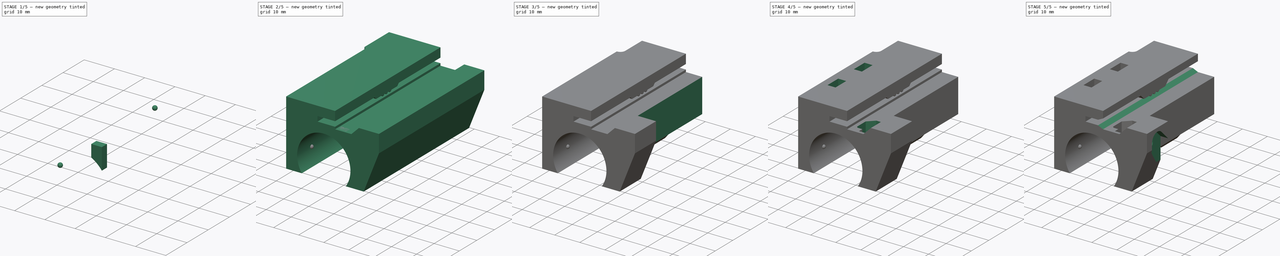
[diagram: build sequence overview — one tinted view per stage of 5, left to right]
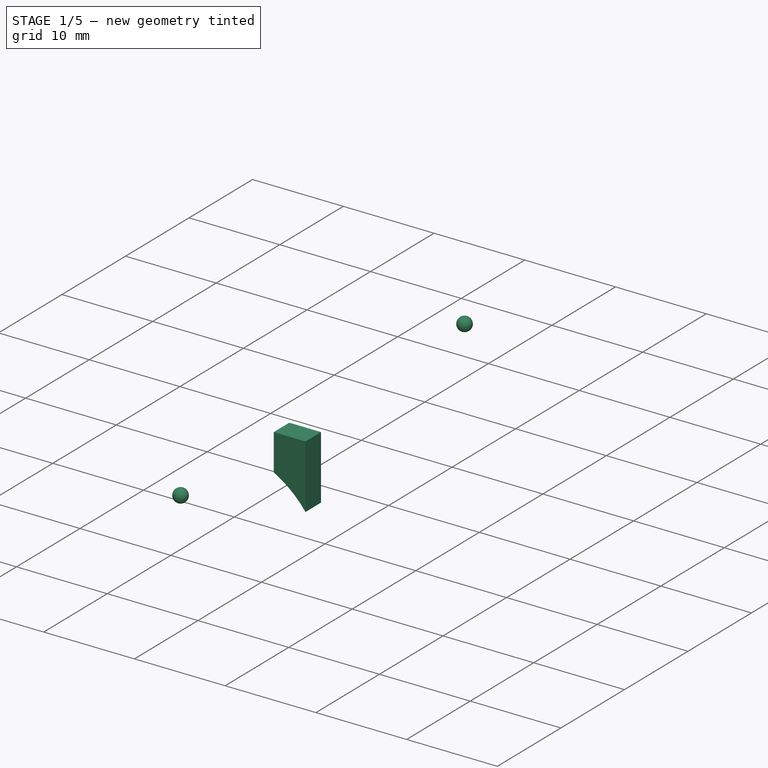
[diagram: stage 1 of 5 — iso view after this stage's code; geometry added in this stage tinted green]
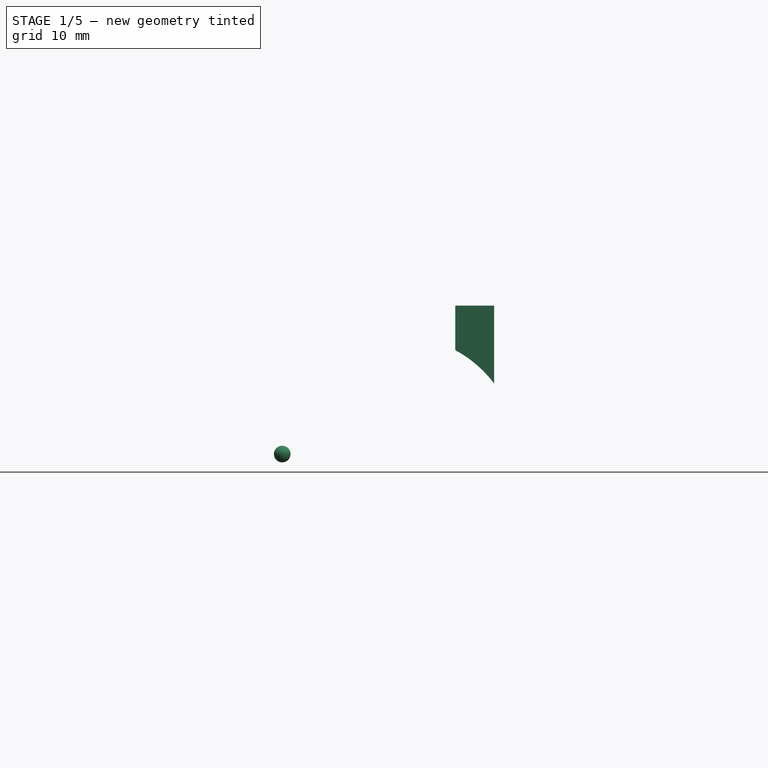
[diagram: stage 1 of 5 — front view after this stage's code; geometry added in this stage tinted green]
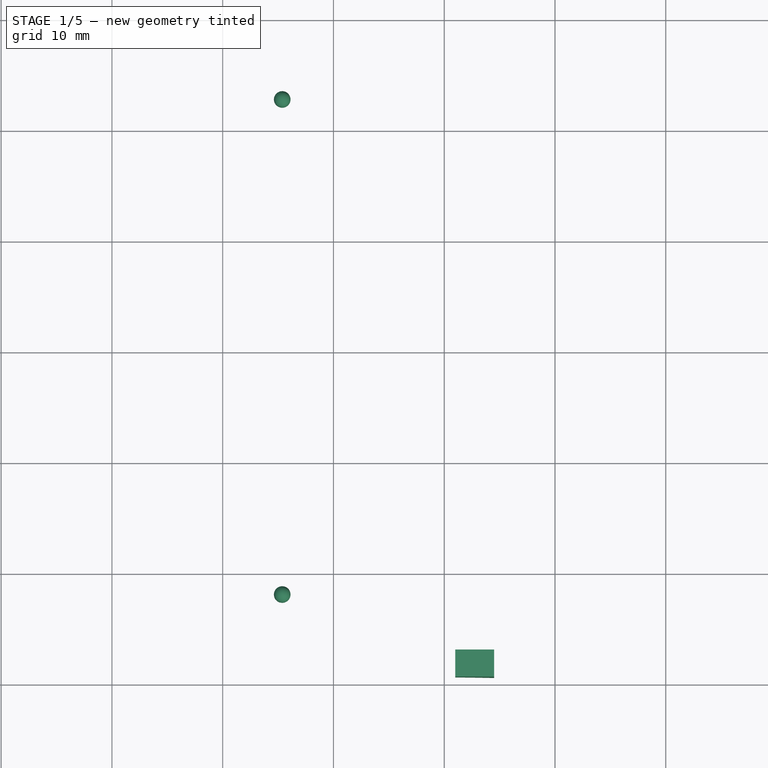
[diagram: stage 1 of 5 — top view after this stage's code; geometry added in this stage tinted green]
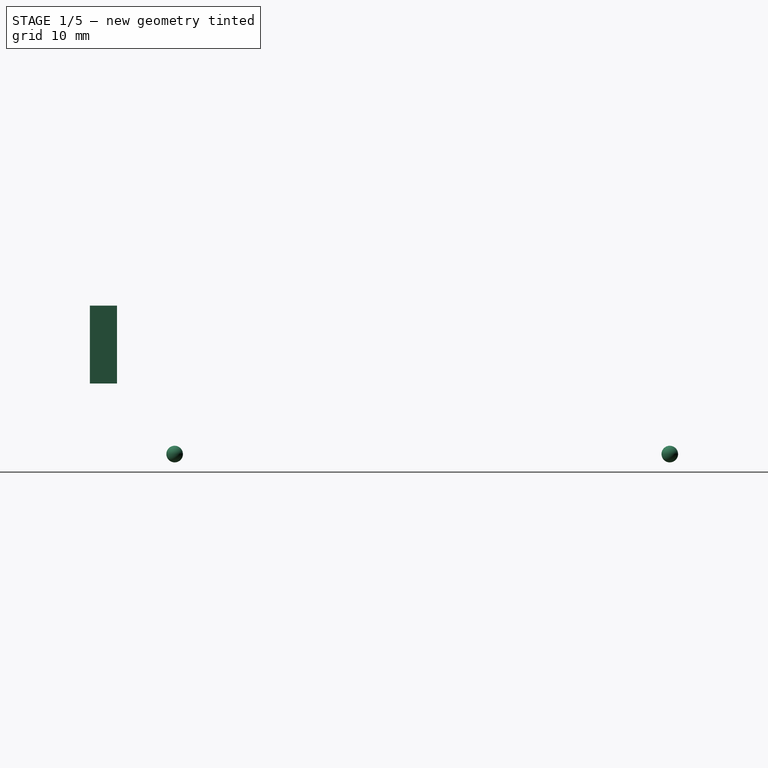
[diagram: stage 1 of 5 — right view after this stage's code; geometry added in this stage tinted green]
FCSTD DOCUMENT  (FreeCAD 0.18R14374 (Git))
Label: 11_546_x-carriage
License: All rights reserved
LicenseURL: http://en.wikipedia.org/wiki/All_rights_reserved
objects: Sketcher::SketchObject×21, PartDesign::Pocket×13, PartDesign::Body×5, PartDesign::Pad×3, PartDesign::Revolution×2, Spreadsheet::Sheet×1, PartDesign::SubtractiveLoft×1
note: 64 computed .brp shape members not serialized (recipe doc carries the construction recipe); baked Part::Feature solids carry a one-line shape summary decoded from their .brp

FEATURE [PartDesign::Body] Body001  label="Belt Gripper"
  Group = -> [Sketch016,Pad001]
  Origin = -> Origin001
  Tip = -> Pad001
FEATURE [Sketcher::SketchObject] Sketch017
  AttachmentOffset = pos=(0,0,29.4) rot=(0,0,1;0rad)
  MapMode = 5
  Placement = pos=(0,0,29.4) rot=(0,0,1;0rad)
  Support = -> [XY_Plane002]
  expr: Constraints[8] = sheet1.xrib_bearing_cut_ix - 1
  expr: Constraints[9] = sheet1.xrib_bearing_cut_ix + sheet1.xrib_bearing_cut_chamfer_dx
  expr: Constraints[12] = sheet1.max_x
  expr: Constraints[13] = sheet1.runner_bearing_y
  expr: Constraints[14] = sheet1.nut_traps_dy / 2
  expr: AttachmentOffset.Base.z = sheet1.xrib_groove_base_z
  sketch-geometry (5):
    g0: LineSegment StartX=21 StartY=2.95 StartZ=0 EndX=24.5 EndY=2.95 EndZ=0
    g1: LineSegment StartX=24.5 StartY=2.95 StartZ=0 EndX=24.5 EndY=0.5 EndZ=0
    g2: LineSegment StartX=24.5 StartY=0.5 StartZ=0 EndX=21 EndY=0.5 EndZ=0
    g3: LineSegment StartX=21 StartY=0.5 StartZ=0 EndX=21 EndY=2.95 EndZ=0
    g4: LineSegment [constr] StartX=0 StartY=6 StartZ=0 EndX=38 EndY=6 EndZ=0
  constraints (16):
    c: Coincident(g0,g1)
    c: Coincident(g1,g2)
    c: Coincident(g2,g3)
    c: Coincident(g3,g0)
    c: Horizontal(g0)
    c: Horizontal(g2)
    c: Vertical(g1)
    c: Vertical(g3)
    c: DistanceX(g-2,g0) = 21
    c: DistanceX(g-2,g0) = 24.5
    c: Horizontal(g4)
    c: PointOnObject(g4,g-2)
    c: Distance(g4) = 38
    c: DistanceY(g-1,g4) = 6
    c: Distance(g0,g4) = 3.05
    c: DistanceY(g-1,g1) = 0.5
FEATURE [PartDesign::Pad] Pad002
  Length = 13.4
  Length2 = 100
  Profile = -> Sketch017
  Reversed = true
  Type = 0
  expr: Length = sheet1.xrib_groove_base_z - sheet1.bearing_z
FEATURE [Sketcher::SketchObject] Sketch018
  MapMode = 5
  Placement = pos=(0,0,0) rot=(1,0,0;1.5708rad)
  Support = -> [XZ_Plane002]
  expr: Constraints[2] = sheet1.bearing_dia / 2
  expr: Constraints[1] = sheet1.bearing_x
  expr: Constraints[0] = sheet1.bearing_z
  sketch-geometry (1):
    g0: Circle CenterX=16 CenterY=16 CenterZ=0 NormalX=0 NormalY=0 NormalZ=1 AngleXU=0 Radius=10.625
  constraints (3):
    c: DistanceY(g-1,g0) = 16
    c: DistanceX(g-2,g0) = 16
    c: Radius(g0) = 10.625
FEATURE [PartDesign::Pocket] Pocket012
  BaseFeature = -> Pad002
  Length = 5
  Length2 = 100
  Profile = -> Sketch018
  Type = 1
FEATURE [PartDesign::Body] Body002  label="XRib Bearing Nut Stop"
  Group = -> [Sketch017,Pad002,Sketch018,Pocket012]
  Origin = -> Origin002
  Tip = -> Pocket012
FEATURE [Sketcher::SketchObject] Sketch019
  AttachmentOffset = pos=(0,0,5.375) rot=(0,0,1;0rad)
  MapMode = 5
  Placement = pos=(5.375,-1e-12,1e-12) rot=(0.57735,0.57735,0.57735;2.0944rad)
  Support = -> [YZ_Plane003]
  expr: AttachmentOffset.Base.z = sheet1.bearing_x - sheet1.bearing_dia / 2
  expr: Constraints[6] = sheet1.bearing_lock_sphere_cntr_y_1
  expr: Constraints[5] = sheet1.bearing_z
  expr: Constraints[4] = sheet1.bearing_lock_sphere_dia / 2
  sketch-geometry (3):
    g0: ArcOfCircle CenterX=8.15 CenterY=16 CenterZ=0 NormalX=0 NormalY=0 NormalZ=1 AngleXU=0 Radius=0.75 StartAngle=4.71239 EndAngle=7.85398
    g1: LineSegment [constr] StartX=8.15 StartY=16.75 StartZ=0 EndX=8.15 EndY=15.25 EndZ=0
    g2: LineSegment StartX=8.15 StartY=16.75 StartZ=0 EndX=8.15 EndY=15.25 EndZ=0
  constraints (9):
    c: Coincident(g0,g1)
    c: Coincident(g0,g1)
    c: PointOnObject(g0,g1)
    c: Vertical(g1)
    c: Radius(g0) = 0.75
    c: DistanceY(g-1,g0) = 16
    c: DistanceX(g-2,g0) = 8.15
    c: Coincident(g0,g2)
    c: Coincident(g0,g2)
FEATURE [PartDesign::Revolution] Revolution
  Angle = 360
  Axis = (0,0,-1.5)
  Base = (5.375,8.15,16.75)
  Placement = pos=(0,0,0) rot=(0.57735,0.57735,0.57735;2.0944rad)
  Profile = -> Sketch019
  ReferenceAxis = -> Sketch019 [Axis0]
FEATURE [PartDesign::Body] Body003  label="Lock Sphere 1"
  Group = -> [Sketch019,Revolution]
  Origin = -> Origin003
  Tip = -> Revolution
FEATURE [Sketcher::SketchObject] Sketch020
  AttachmentOffset = pos=(0,0,5.375) rot=(0,0,1;0rad)
  MapMode = 5
  Placement = pos=(5.375,-1e-12,1e-12) rot=(0.57735,0.57735,0.57735;2.0944rad)
  Support = -> [YZ_Plane004]
  expr: AttachmentOffset.Base.z = sheet1.bearing_x - sheet1.bearing_dia / 2
  expr: Constraints[6] = sheet1.bearing_lock_sphere_cntr_y_2
  expr: Constraints[5] = sheet1.bearing_z
  expr: Constraints[4] = sheet1.bearing_lock_sphere_dia / 2
  sketch-geometry (3):
    g0: ArcOfCircle CenterX=52.85 CenterY=16 CenterZ=0 NormalX=0 NormalY=0 NormalZ=1 AngleXU=0 Radius=0.75 StartAngle=1.5708 EndAngle=4.71239
    g1: LineSegment [constr] StartX=52.85 StartY=15.25 StartZ=0 EndX=52.85 EndY=16.75 EndZ=0
    g2: LineSegment StartX=52.85 StartY=15.25 StartZ=0 EndX=52.85 EndY=16.75 EndZ=0
  constraints (9):
    c: Coincident(g0,g1)
    c: Coincident(g0,g1)
    c: PointOnObject(g0,g1)
    c: Vertical(g1)
    c: Radius(g0) = 0.75
    c: DistanceY(g-1,g0) = 16
    c: DistanceX(g-2,g0) = 52.85
    c: Coincident(g0,g2)
    c: Coincident(g0,g2)
FEATURE [PartDesign::Revolution] Revolution001
  Angle = 360
  Axis = (0,0,1.5)
  Base = (5.375,52.85,15.25)
  Placement = pos=(0,0,0) rot=(0.57735,0.57735,0.57735;2.0944rad)
  Profile = -> Sketch020
  ReferenceAxis = -> Sketch020 [Axis0]
FEATURE [PartDesign::Body] Body004  label="Lock Sphere 2"
  Group = -> [Sketch020,Revolution001]
  Origin = -> Origin004
  Tip = -> Revolution001
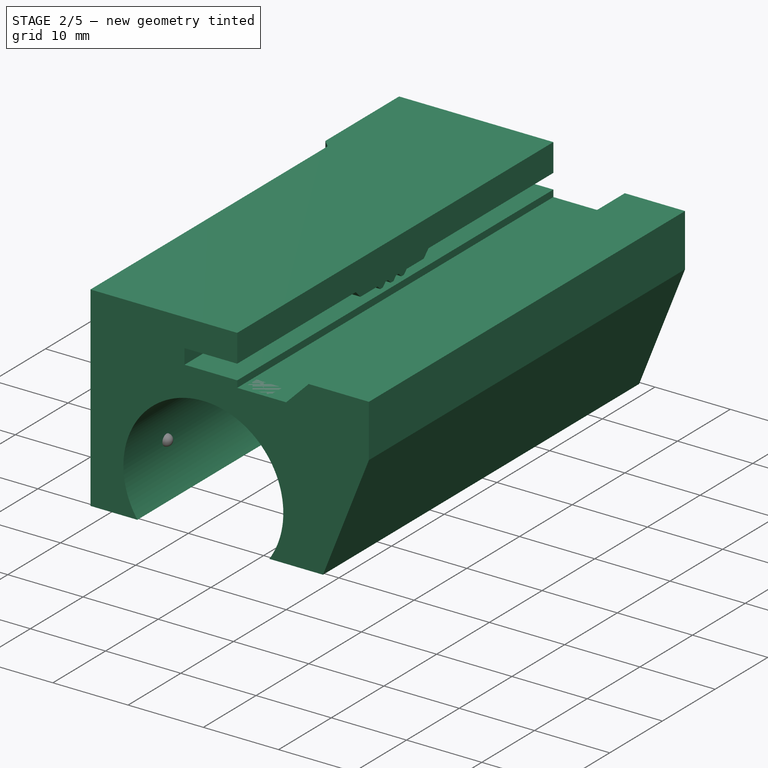
[diagram: stage 2 of 5 — iso view after this stage's code; geometry added in this stage tinted green]
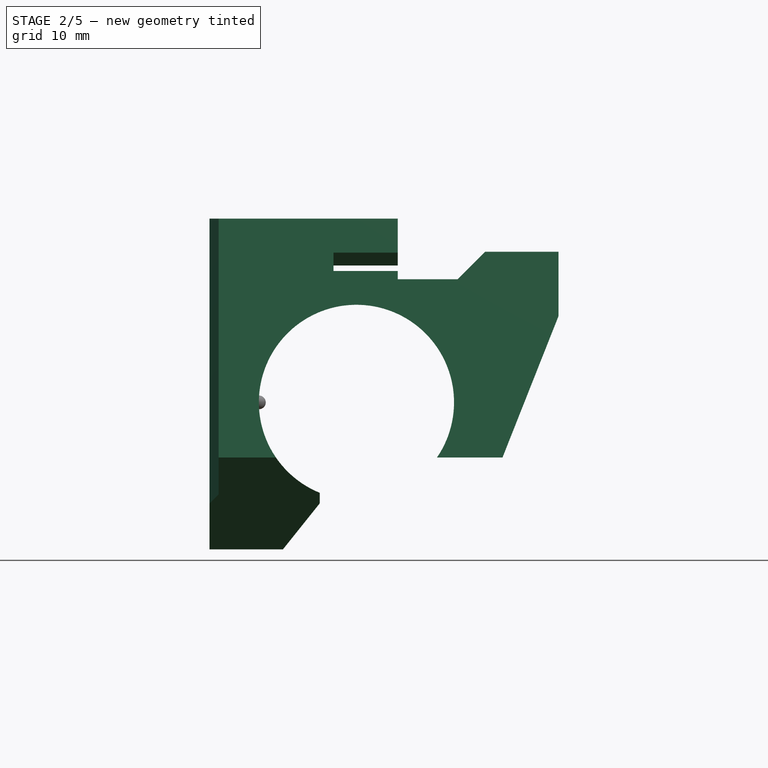
[diagram: stage 2 of 5 — front view after this stage's code; geometry added in this stage tinted green]
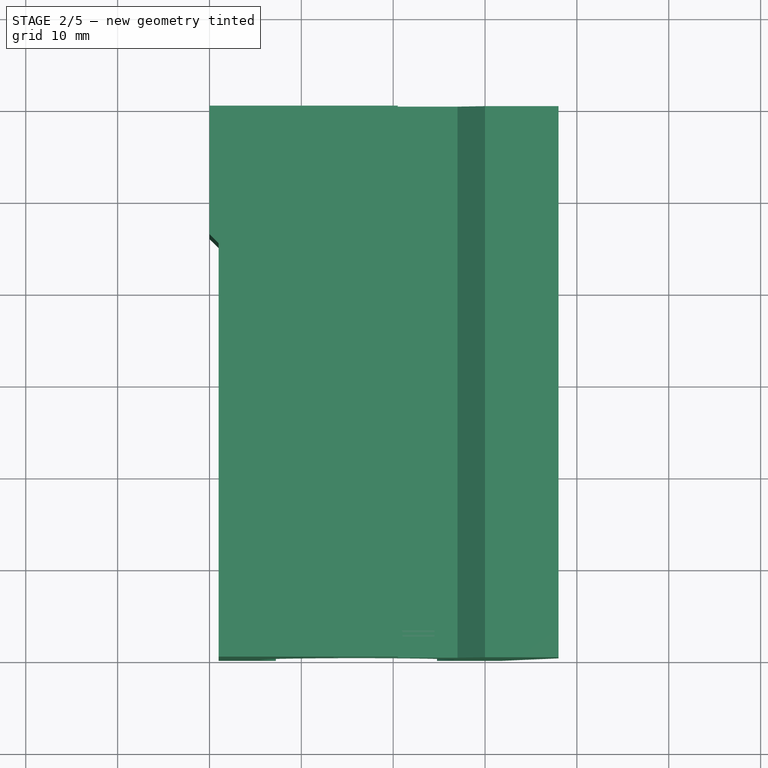
[diagram: stage 2 of 5 — top view after this stage's code; geometry added in this stage tinted green]
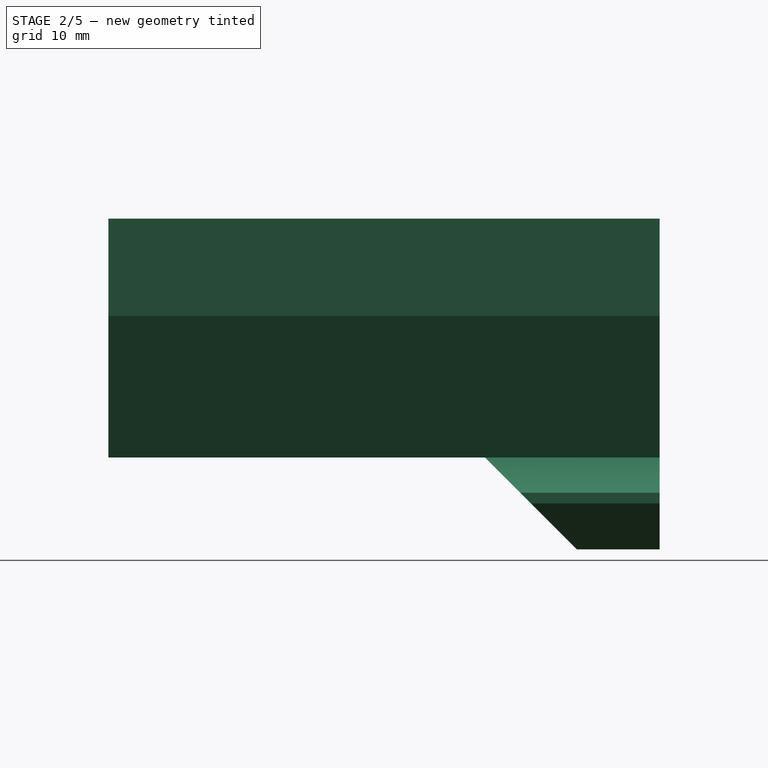
[diagram: stage 2 of 5 — right view after this stage's code; geometry added in this stage tinted green]
FEATURE [Spreadsheet::Sheet] Spreadsheet  label="sheet1"
  cells = A1=max_x; B1(max_x)=38; A2=max_y; B2(max_y)=60; A3=max_z; B3(max_z)=36; A4=bearing_x; B4(bearing_x)=16; C4=16.300000000000001; A5=bearing_z; B5(bearing_z)=16; C5=16.100000000000001; A6=bearing_dia; B6(bearing_dia)=21.25; A7=nozzle_bolt1_y; B7(nozzle_bolt1_y)=15.75; A8=nozzle_bolt1_z; B8(nozzle_bolt1_z)=29; A9=nozzle_bolt2_y; B9(nozzle_bolt2_y)=30.75; A10=nozzle_bolt2_z; B10(nozzle_bolt2_z)=29; A11=irsen_bolt1_y; B11(irsen_bolt1_y)=49.299999999999997; A12=irsen_bolt1_z; B12(irsen_bolt1_z)=7; A13=irsen_bolt2_y; B13(irsen_bolt2_y)=49.299999999999997; A14=irsen_bolt2_z; B14(irsen_bolt2_z)=17; A15=runner_bearing_y; B15(runner_bearing_y)=6; A16=runner_bearing_z; B16(runner_bearing_z)=25.800000000000001; A17=runner_bearing_dz; B17(runner_bearing_dz)=2; A18=m3_clearance; B18(m3_clearance)=3.3000000000000003; A19=m3_counter_bore; B19(m3_counter_bore)=6.2999999999999998; A20=belt_base_x; B20(belt_base_x)=13.5; A21=belt_top_x; B21(belt_top_x)=20.5; A22=belt_base_z; B22(belt_base_z)=30.300000000000001; A23=belt_top_z; B23(belt_top_z)=32.299999999999997; A24=xrib_groove_base_z; B24(xrib_groove_base_z)=29.399999999999999; A25=xrib_bearing_sup_base_x; B25(xrib_bearing_sup_base_x)=27; A26=xrib_bearing_sup_top_x; B26(xrib_bearing_sup_top_x)=30; A27=xrib_bearing_sup_top_z; B27(xrib_bearing_sup_top_z)=32.399999999999999; A28=side_chamf_top_z; B28(side_chamf_top_z)=25.399999999999999; A29=side_chamf_base_z; B29(side_chamf_base_z)=10; A30=side_chamf_base_x; B30(side_chamf_base_x)=31.899999999999999; A31=base_chamf_base_x; B31(base_chamf_base_x)=8; A32=base_chamf_top_x; B32(base_chamf_top_x)=12; A33=base_chamf_top_z; B33(base_chamf_top_z)=5; A34=xrib_bearing_top_y; B34(xrib_bearing_top_y)=12; A35=bearing_sleeve_outer_max_x; B35(bearing_sleeve_outer_max_x)=27; A36=bearing_sleeve_outer_min_x; B36(bearing_sleeve_outer_min_x)=1; A37=proxy_chamf_start_y; B37(proxy_chamf_start_y)=45; A38=proxy_chamf_fini_y; B38(proxy_chamf_fini_y)=46; A39=pillar_clear_x; B39(pillar_clear_x)=12.5; A40=pillar_clear_y; B40(pillar_clear_y)=54; A41=pillar_clear_z; B41(pillar_clear_z)=26; A42=proxy_lower_chamf_ini_y; B42(proxy_lower_chamf_ini_y)=41; A43=proxy_lower_chamf_fini_y; B43(proxy_lower_chamf_fini_y)=51; A44=bearing_sleeve_outer_min_z; B44(bearing_sleeve_outer_min_z)=10; A45=bearing_sleeve_zcut; B45(bearing_sleeve_zcut)=16; A46=proxy_upper_cut_rad; B46(proxy_upper_cut_rad)=2; A47=proxy_upper_cut_rad_base_y; B47(proxy_upper_cut_rad_base_y)=44.5; A48=proxy_upper_cut_depth; B48(proxy_upper_cut_depth)=15; A49=proxy_lower_cut_dy; B49(proxy_lower_cut_dy)=8.1999999999999993; A50=proxy_lower_cut_dx; B50(proxy_lower_cut_dx)=7; A51=proxy_lower_cut_dz; B51(proxy_lower_cut_dz)=4; A52=xrib_bearing_cut_dia; B52(xrib_bearing_cut_dia)=9.9000000000000004; A53=xrib_bearing_cut_dx; B53(xrib_bearing_cut_dx)=7.5; A54=xrib_bearing_cut_ix; B54(xrib_bearing_cut_ix)=22; A55=xrib_bearing_cut_chamfer_dx; B55(xrib_bearing_cut_chamfer_dx)=2.5; A56=nut_traps_dy; B56(nut_traps_dy)=6.0999999999999996; A57=nut_traps_ix; B57(nut_traps_ix)=3.7999999999999998; A58=nut_traps_dx; B58(nut_traps_dx)=3.2000000000000002; A59=nozzle_bolt_fx; B59(nozzle_bolt_fx)=11; A60=proxy_bolt_fx; B60(proxy_bolt_fx)=4; A61=m2p5_tap; B61(m2p5_tap)=2.5; A62=xrib_bearing_counterbore_depth; B62(xrib_bearing_counterbore_depth)=3; A63=bearing_lock_sphere_dia; B63(bearing_lock_sphere_dia)=1.5; A64=bearing_lock_sphere_cntr_y_1; B64(bearing_lock_sphere_cntr_y_1)=8.1500000000000004; A65=bearing_lock_sphere_cntr_y_2; B65(bearing_lock_sphere_cntr_y_2)=52.850000000000001
FEATURE [Sketcher::SketchObject] Sketch
  MapMode = 5
  Placement = pos=(0,0,0) rot=(1,0,0;1.5708rad)
  Support = -> [XZ_Plane]
  expr: Constraints[44] = sheet1.belt_top_x
  expr: Constraints[43] = sheet1.belt_top_z
  expr: Constraints[42] = sheet1.belt_base_z
  expr: Constraints[41] = sheet1.belt_base_x
  expr: Constraints[50] = sheet1.side_chamf_top_z
  expr: Constraints[46] = sheet1.xrib_groove_base_z
  expr: Constraints[38] = sheet1.side_chamf_base_x
  expr: Constraints[48] = sheet1.xrib_bearing_sup_top_z
  expr: Constraints[8] = sheet1.side_chamf_base_z
  expr: Constraints[40] = sheet1.max_z
  expr: Constraints[7] = sheet1.base_chamf_top_x
  expr: Constraints[36] = sheet1.base_chamf_base_x
  expr: Constraints[6] = sheet1.bearing_dia / 2
  expr: Constraints[5] = sheet1.bearing_z
  expr: Constraints[39] = sheet1.max_x
  expr: Constraints[47] = sheet1.xrib_bearing_sup_base_x
  expr: Constraints[37] = sheet1.base_chamf_top_z
  expr: Constraints[49] = sheet1.xrib_bearing_sup_top_x
  expr: Constraints[4] = sheet1.bearing_x
  sketch-geometry (17):
    g0: ArcOfCircle CenterX=16 CenterY=16 CenterZ=0 NormalX=0 NormalY=0 NormalZ=1 AngleXU=0 Radius=10.625 StartAngle=5.68311 EndAngle=10.6096
    g1: LineSegment StartX=12 StartY=6.1567 StartZ=0 EndX=12 EndY=5 EndZ=0
    g2: LineSegment StartX=24.7687 StartY=10 StartZ=0 EndX=31.9 EndY=10 EndZ=0
    g3: LineSegment StartX=12 StartY=5 StartZ=0 EndX=8 EndY=0 EndZ=0
    g4: LineSegment StartX=8 StartY=0 StartZ=0 EndX=0 EndY=0 EndZ=0
    g5: LineSegment StartX=0 StartY=0 StartZ=0 EndX=0 EndY=36 EndZ=0
    g6: LineSegment StartX=0 StartY=36 StartZ=0 EndX=20.5 EndY=36 EndZ=0
    g7: LineSegment StartX=20.5 StartY=36 StartZ=0 EndX=20.5 EndY=32.3 EndZ=0
    g8: LineSegment StartX=20.5 StartY=32.3 StartZ=0 EndX=13.5 EndY=32.3 EndZ=0
    g9: LineSegment StartX=13.5 StartY=32.3 StartZ=0 EndX=13.5 EndY=30.3 EndZ=0
    g10: LineSegment StartX=13.5 StartY=30.3 StartZ=0 EndX=20.5 EndY=30.3 EndZ=0
    g11: LineSegment StartX=20.5 StartY=30.3 StartZ=0 EndX=20.5 EndY=29.4 EndZ=0
    g12: LineSegment StartX=20.5 StartY=29.4 StartZ=0 EndX=27 EndY=29.4 EndZ=0
    g13: LineSegment StartX=27 StartY=29.4 StartZ=0 EndX=30 EndY=32.4 EndZ=0
    g14: LineSegment StartX=30 StartY=32.4 StartZ=0 EndX=38 EndY=32.4 EndZ=0
    g15: LineSegment StartX=38 StartY=32.4 StartZ=0 EndX=38 EndY=25.4 EndZ=0
    g16: LineSegment StartX=38 StartY=25.4 StartZ=0 EndX=31.9 EndY=10 EndZ=0
  constraints (51):
    c: Coincident(g0,g1)
    c: Coincident(g0,g2)
    c: Vertical(g1)
    c: Horizontal(g2)
    c: DistanceX(g-2,g0) = 16
    c: DistanceY(g-1,g0) = 16
    c: Radius(g0) = 10.625
    c: DistanceX(g-2,g1) = 12
    c: DistanceY(g-1,g2) = 10
    c: Coincident(g3,g4)
    c: Coincident(g4,g5)
    c: Coincident(g5,g6)
    c: Coincident(g6,g7)
    c: Coincident(g7,g8)
    c: Coincident(g8,g9)
    c: Coincident(g9,g10)
    c: Coincident(g10,g11)
    c: Coincident(g11,g12)
    c: Coincident(g12,g13)
    c: Coincident(g13,g14)
    c: Coincident(g14,g15)
    c: Coincident(g15,g16)
    c: Coincident(g2,g16)
    c: Coincident(g1,g3)
    c: Coincident(g4,g-1)
    c: Horizontal(g4)
    c: Horizontal(g6)
    c: Horizontal(g8)
    c: Horizontal(g10)
    c: Horizontal(g12)
    c: Horizontal(g14)
    c: Vertical(g5)
    c: Vertical(g9)
    c: Vertical(g7)
    c: Vertical(g11)
    c: Vertical(g15)
    c: DistanceX(g-2,g3) = 8
    c: DistanceY(g-1,g1) = 5
    c: DistanceX(g-2,g2) = 31.9
    c: DistanceX(g-2,g15) = 38
    c: DistanceY(g-1,g5) = 36
    c: DistanceX(g-2,g8) = 13.5
    c: DistanceY(g-1,g9) = 30.3
    c: DistanceY(g-1,g8) = 32.3
    c: DistanceX(g-2,g7) = 20.5
    c: PointOnObject(g10,g7)
    c: DistanceY(g-1,g12) = 29.4
    c: DistanceX(g-2,g12) = 27
    c: DistanceY(g-1,g14) = 32.4
    c: DistanceX(g-2,g13) = 30
    c: DistanceY(g-1,g15) = 25.4
FEATURE [PartDesign::Pad] Pad
  Length = 60
  Length2 = 100
  Placement = pos=(0,0,0) rot=(1,0,0;1.5708rad)
  Profile = -> Sketch
  Reversed = true
  Type = 0
  expr: Length = sheet1.max_y
FEATURE [Sketcher::SketchObject] Sketch001
  MapMode = 5
  Support = -> [XY_Plane]
  expr: Constraints[9] = sheet1.proxy_chamf_start_y
  expr: Constraints[10] = sheet1.proxy_chamf_fini_y
  expr: Constraints[8] = sheet1.bearing_sleeve_outer_min_x
  sketch-geometry (4):
    g0: LineSegment StartX=0 StartY=46 StartZ=0 EndX=1 EndY=45 EndZ=0
    g1: LineSegment StartX=1 StartY=45 StartZ=0 EndX=1 EndY=0 EndZ=0
    g2: LineSegment StartX=1 StartY=0 StartZ=0 EndX=0 EndY=0 EndZ=0
    g3: LineSegment StartX=0 StartY=0 StartZ=0 EndX=0 EndY=46 EndZ=0
  constraints (11):
    c: Coincident(g0,g1)
    c: Coincident(g1,g2)
    c: Coincident(g2,g3)
    c: Coincident(g0,g3)
    c: Horizontal(g2)
    c: Vertical(g3)
    c: Vertical(g1)
    c: Coincident(g-1,g2)
    c: Distance(g2) = 1
    c: DistanceY(g-1,g0) = 45
    c: DistanceY(g-1,g0) = 46
FEATURE [PartDesign::Pocket] Pocket
  BaseFeature = -> Pad
  Length = 5
  Length2 = 100
  Placement = pos=(0,0,0) rot=(1,0,0;1.5708rad)
  Profile = -> Sketch001
  Reversed = true
  Type = 1
FEATURE [Sketcher::SketchObject] Sketch002
  MapMode = 5
  Placement = pos=(0,0,0) rot=(0.57735,0.57735,0.57735;2.0944rad)
  Support = -> [YZ_Plane]
  expr: Constraints[10] = sheet1.proxy_lower_chamf_fini_y
  expr: Constraints[9] = sheet1.proxy_lower_chamf_ini_y
  expr: Constraints[8] = sheet1.bearing_sleeve_outer_min_z
  sketch-geometry (4):
    g0: LineSegment StartX=0 StartY=10 StartZ=0 EndX=41 EndY=10 EndZ=0
    g1: LineSegment StartX=41 StartY=10 StartZ=0 EndX=51 EndY=0 EndZ=0
    g2: LineSegment StartX=51 StartY=0 StartZ=0 EndX=0 EndY=0 EndZ=0
    g3: LineSegment StartX=0 StartY=0 StartZ=0 EndX=0 EndY=10 EndZ=0
  constraints (11):
    c: Coincident(g0,g1)
    c: Coincident(g1,g2)
    c: Coincident(g2,g3)
    c: Coincident(g0,g3)
    c: Coincident(g2,g-1)
    c: Horizontal(g2)
    c: Horizontal(g0)
    c: Vertical(g3)
    c: DistanceY(g-1,g0) = 10
    c: DistanceX(g-2,g0) = 41
    c: DistanceX(g-2,g1) = 51
FEATURE [PartDesign::Pocket] Pocket001
  BaseFeature = -> Pocket
  Length = 5
  Length2 = 100
  Placement = pos=(0,0,0) rot=(1,0,0;1.5708rad)
  Profile = -> Sketch002
  Reversed = true
  Type = 1
FEATURE [PartDesign::Body] Body  label="Main Body"
  Group = -> [Sketch,Pad,Sketch001,Pocket,Sketch002,Pocket001,Sketch003,Pocket002,Sketch004,Pocket003,Sketch005,Pocket004,Sketch006,Pocket005,Sketch007,Sketch008,Sketch009,SubtractiveLoft,Sketch010,Pocket006,Sketch011,Pocket007,Sketch012,Pocket008,Sketch013,Pocket009,Sketch014,Pocket010,Sketch015,Pocket011]
  Origin = -> Origin
  Tip = -> Pocket011
FEATURE [Sketcher::SketchObject] Sketch016
  AttachmentOffset = pos=(0,0,20.5) rot=(0,0,1;0rad)
  MapMode = 5
  Placement = pos=(20.5,-2e-12,2e-12) rot=(0.57735,0.57735,0.57735;2.0944rad)
  Support = -> [YZ_Plane001]
  expr: AttachmentOffset.Base.z = sheet1.belt_top_x
  expr: Constraints[50] = sheet1.belt_top_z
  sketch-geometry (18):
    g0: LineSegment StartX=21.5 StartY=33.3 StartZ=0 EndX=37.3 EndY=33.3 EndZ=0
    g1: LineSegment StartX=37.3 StartY=33.3 StartZ=0 EndX=35.4 EndY=31.4 EndZ=0
    g2: LineSegment StartX=35.4 StartY=31.4 StartZ=0 EndX=32.15 EndY=31.4 EndZ=0
    g3: LineSegment StartX=32.15 StartY=31.4 StartZ=0 EndX=31.65 EndY=30.9 EndZ=0
    g4: LineSegment StartX=31.65 StartY=30.9 StartZ=0 EndX=31.15 EndY=30.9 EndZ=0
    g5: LineSegment StartX=31.15 StartY=30.9 StartZ=0 EndX=30.65 EndY=31.4 EndZ=0
    g6: LineSegment StartX=30.65 StartY=31.4 StartZ=0 EndX=30.15 EndY=31.4 EndZ=0
    g7: LineSegment StartX=30.15 StartY=31.4 StartZ=0 EndX=29.65 EndY=30.9 EndZ=0
    g8: LineSegment StartX=29.65 StartY=30.9 StartZ=0 EndX=29.15 EndY=30.9 EndZ=0
    g9: LineSegment StartX=29.15 StartY=30.9 StartZ=0 EndX=28.65 EndY=31.4 EndZ=0
    g10: LineSegment StartX=28.65 StartY=31.4 StartZ=0 EndX=28.15 EndY=31.4 EndZ=0
    g11: LineSegment StartX=28.15 StartY=31.4 StartZ=0 EndX=27.65 EndY=30.9 EndZ=0
    g12: LineSegment StartX=27.65 StartY=30.9 StartZ=0 EndX=27.15 EndY=30.9 EndZ=0
    g13: LineSegment StartX=27.15 StartY=30.9 StartZ=0 EndX=26.65 EndY=31.4 EndZ=0
    g14: LineSegment StartX=26.65 StartY=31.4 StartZ=0 EndX=23.4 EndY=31.4 EndZ=0
    g15: LineSegment StartX=23.4 StartY=31.4 StartZ=0 EndX=21.5 EndY=33.3 EndZ=0
    g16: LineSegment [constr] StartX=29.4 StartY=33.3 StartZ=0 EndX=29.4 EndY=30.9 EndZ=0
    g17: LineSegment [constr] StartX=22.5 StartY=32.3 StartZ=0 EndX=36.3 EndY=32.3 EndZ=0
  constraints (53):
    c: Coincident(g0,g1)
    c: Coincident(g1,g2)
    c: Coincident(g2,g3)
    c: Coincident(g3,g4)
    c: Coincident(g4,g5)
    c: Coincident(g5,g6)
    c: Coincident(g6,g7)
    c: Coincident(g7,g8)
    c: Coincident(g8,g9)
    c: Coincident(g9,g10)
    c: Coincident(g10,g11)
    c: Coincident(g11,g12)
    c: Coincident(g12,g13)
    c: Coincident(g13,g14)
    c: Coincident(g14,g15)
    c: Coincident(g15,g0)
    c: Horizontal(g14)
    c: Horizontal(g10)
    c: Horizontal(g6)
    c: Horizontal(g2)
    c: PointOnObject(g10,g14)
    c: PointOnObject(g6,g14)
    c: PointOnObject(g2,g14)
    c: Horizontal(g12)
    c: Horizontal(g4)
    c: PointOnObject(g8,g12)
    c: PointOnObject(g4,g12)
    c: Parallel(g13,g9)
    c: Parallel(g9,g5)
    c: Parallel(g11,g7)
    c: Parallel(g7,g3)
    c: Equal(g14,g2)
    c: Equal(g10,g6)
    c: Equal(g12,g8)
    c: Equal(g8,g4)
    c: PointOnObject(g16,g0)
    c: PointOnObject(g16,g8)
    c: Symmetric(g8,g7,g16)
    c: Symmetric(g0,g0,g16)
    c: Symmetric(g1,g14,g16)
    c: Distance(g12,g14) = 0.5
    c: Distance(g13,g9) = 2
    c: Distance(g14,g1) = 12
    c: PointOnObject(g17,g15)
    c: PointOnObject(g17,g1)
    c: Horizontal(g17)
    c: Distance(g16,g17) = 1
    c: Distance(g10) = 0.5
    c: Distance(g12) = 0.5
    c: Angle(g15,g0) = 0.785398
    c: DistanceY(g-1,g17) = 32.3
    c: Distance(g12,g17) = 1.4
    c: DistanceX(g-2,g17) = 22.5
FEATURE [PartDesign::Pad] Pad001
  Length = 8
  Length2 = 100
  Placement = pos=(0,0,0) rot=(0.57735,0.57735,0.57735;2.0944rad)
  Profile = -> Sketch016
  Reversed = true
  Type = 0
  expr: Length = sheet1.belt_top_x - sheet1.belt_base_x + 1
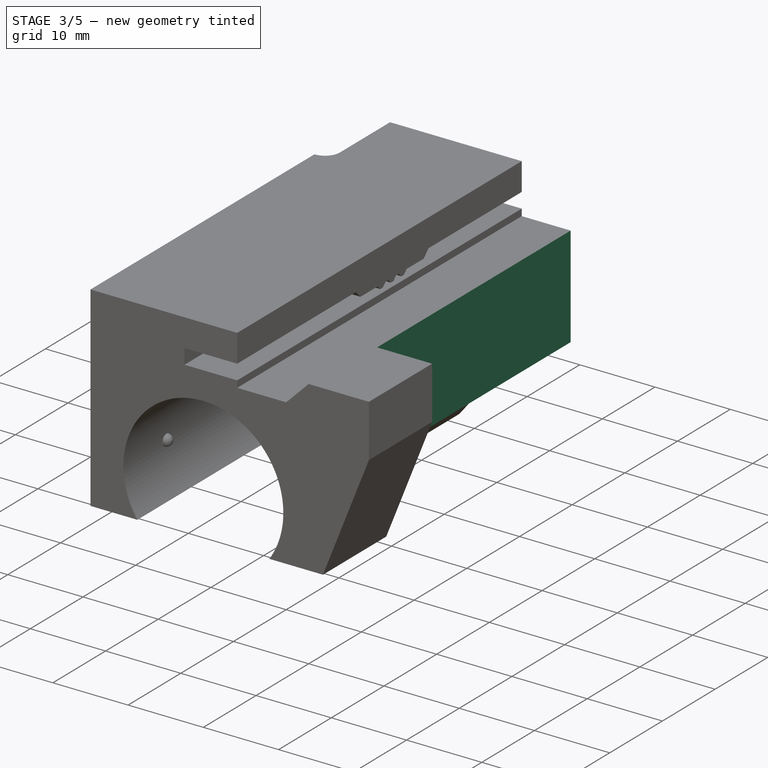
[diagram: stage 3 of 5 — iso view after this stage's code; geometry added in this stage tinted green]
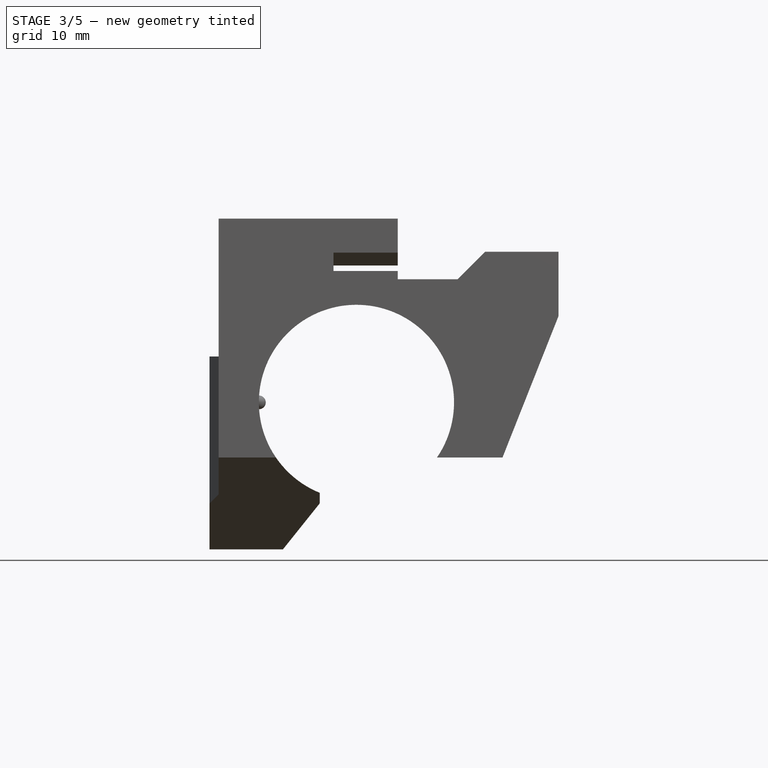
[diagram: stage 3 of 5 — front view after this stage's code; geometry added in this stage tinted green]
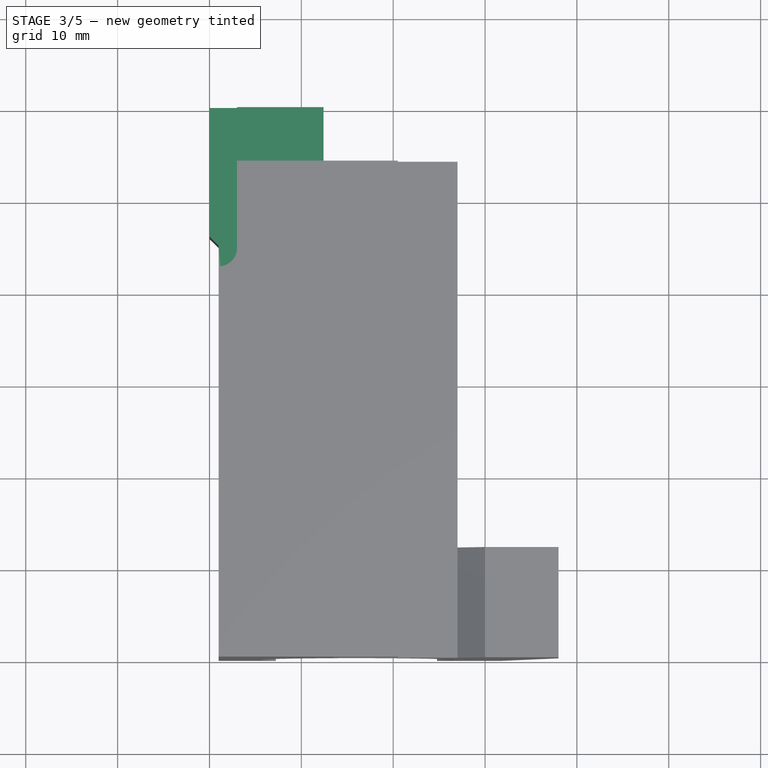
[diagram: stage 3 of 5 — top view after this stage's code; geometry added in this stage tinted green]
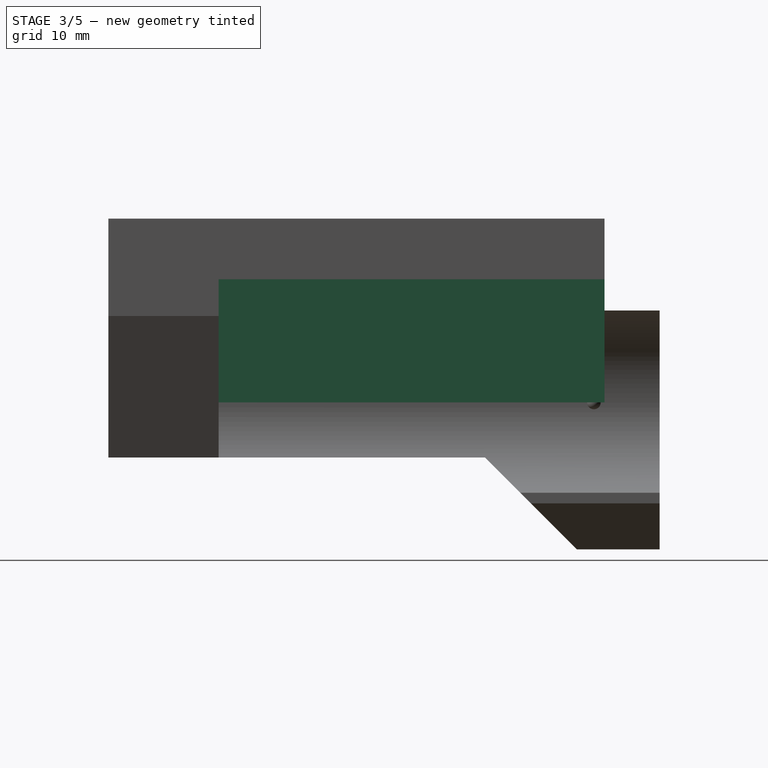
[diagram: stage 3 of 5 — right view after this stage's code; geometry added in this stage tinted green]
FEATURE [Sketcher::SketchObject] Sketch003
  AttachmentOffset = pos=(0,0,-54) rot=(0,0,1;0rad)
  MapMode = 5
  Placement = pos=(0,54,6e-12) rot=(1,0,0;1.5708rad)
  Support = -> [XZ_Plane]
  expr: AttachmentOffset.Base.z = -sheet1.pillar_clear_y
  expr: Constraints[17] = sheet1.pillar_clear_x
  expr: Constraints[16] = sheet1.pillar_clear_z
  expr: Constraints[15] = sheet1.max_x
  expr: Constraints[14] = sheet1.max_z
  sketch-geometry (6):
    g0: LineSegment StartX=0 StartY=36 StartZ=0 EndX=0 EndY=26 EndZ=0
    g1: LineSegment StartX=0 StartY=26 StartZ=0 EndX=12.5 EndY=26 EndZ=0
    g2: LineSegment StartX=12.5 StartY=26 StartZ=0 EndX=12.5 EndY=0 EndZ=0
    g3: LineSegment StartX=12.5 StartY=0 StartZ=0 EndX=38 EndY=0 EndZ=0
    g4: LineSegment StartX=38 StartY=0 StartZ=0 EndX=38 EndY=36 EndZ=0
    g5: LineSegment StartX=38 StartY=36 StartZ=0 EndX=0 EndY=36 EndZ=0
  constraints (18):
    c: Coincident(g0,g1)
    c: Coincident(g1,g2)
    c: Coincident(g2,g3)
    c: Coincident(g3,g4)
    c: Coincident(g4,g5)
    c: Coincident(g5,g0)
    c: PointOnObject(g0,g-2)
    c: PointOnObject(g2,g-1)
    c: Vertical(g0)
    c: Vertical(g2)
    c: Vertical(g4)
    c: Horizontal(g1)
    c: Horizontal(g5)
    c: Horizontal(g3)
    c: DistanceY(g-1,g0) = 36
    c: DistanceX(g-2,g4) = 38
    c: DistanceY(g-1,g0) = 26
    c: DistanceX(g-2,g2) = 12.5
FEATURE [PartDesign::Pocket] Pocket002
  BaseFeature = -> Pocket001
  Length = 6
  Length2 = 100
  Placement = pos=(0,0,0) rot=(1,0,0;1.5708rad)
  Profile = -> Sketch003
  Type = 0
  expr: Length = sheet1.max_y - sheet1.pillar_clear_y
FEATURE [Sketcher::SketchObject] Sketch004
  AttachmentOffset = pos=(0,0,-60) rot=(0,0,1;0rad)
  MapMode = 5
  Placement = pos=(0,60,6e-12) rot=(1,0,0;1.5708rad)
  Support = -> [XZ_Plane]
  expr: AttachmentOffset.Base.z = -sheet1.max_y
  expr: Constraints[17] = sheet1.bearing_sleeve_outer_max_x
  expr: Constraints[16] = sheet1.bearing_sleeve_zcut
  expr: Constraints[15] = sheet1.max_x
  expr: Constraints[14] = sheet1.max_z
  expr: Constraints[12] = sheet1.bearing_x
  sketch-geometry (6):
    g0: LineSegment StartX=27 StartY=36 StartZ=0 EndX=27 EndY=16 EndZ=0
    g1: LineSegment StartX=27 StartY=16 StartZ=0 EndX=16 EndY=16 EndZ=0
    g2: LineSegment StartX=16 StartY=16 StartZ=0 EndX=16 EndY=0 EndZ=0
    g3: LineSegment StartX=16 StartY=0 StartZ=0 EndX=38 EndY=0 EndZ=0
    g4: LineSegment StartX=38 StartY=0 StartZ=0 EndX=38 EndY=36 EndZ=0
    g5: LineSegment StartX=38 StartY=36 StartZ=0 EndX=27 EndY=36 EndZ=0
  constraints (18):
    c: Coincident(g0,g1)
    c: Coincident(g1,g2)
    c: Coincident(g2,g3)
    c: Coincident(g3,g4)
    c: Coincident(g4,g5)
    c: Coincident(g0,g5)
    c: Horizontal(g3)
    c: Horizontal(g1)
    c: Horizontal(g5)
    c: Vertical(g0)
    c: Vertical(g4)
    c: Vertical(g2)
    c: DistanceX(g-2,g1) = 16
    c: PointOnObject(g2,g-1)
    c: DistanceY(g-1,g0) = 36
    c: DistanceX(g-2,g3) = 38
    c: DistanceY(g-1,g0) = 16
    c: DistanceX(g-2,g0) = 27
FEATURE [PartDesign::Pocket] Pocket003
  BaseFeature = -> Pocket002
  Length = 48
  Length2 = 100
  Placement = pos=(0,0,0) rot=(1,0,0;1.5708rad)
  Profile = -> Sketch004
  Reversed = true
  Type = 0
  expr: Length = sheet1.max_y - sheet1.xrib_bearing_top_y
FEATURE [Sketcher::SketchObject] Sketch005
  AttachmentOffset = pos=(0,0,36) rot=(0,0,1;0rad)
  MapMode = 5
  Placement = pos=(0,0,36) rot=(0,0,1;0rad)
  Support = -> [XY_Plane]
  expr: AttachmentOffset.Base.z = sheet1.max_z
  expr: Constraints[10] = sheet1.max_y
  expr: Constraints[8] = sheet1.proxy_upper_cut_rad_base_y
  expr: Constraints[7] = sheet1.proxy_upper_cut_rad
  sketch-geometry (4):
    g0: LineSegment StartX=-1 StartY=60 StartZ=0 EndX=3 EndY=60 EndZ=0
    g1: LineSegment StartX=3 StartY=60 StartZ=0 EndX=3 EndY=44.5 EndZ=0
    g2: LineSegment StartX=-1 StartY=60 StartZ=0 EndX=-1 EndY=44.5 EndZ=0
    g3: ArcOfCircle CenterX=1 CenterY=44.5 CenterZ=0 NormalX=0 NormalY=0 NormalZ=1 AngleXU=0 Radius=2 StartAngle=3.14159 EndAngle=6.28319
  constraints (11):
    c: Coincident(g0,g1)
    c: Coincident(g0,g2)
    c: Tangent(g2,g3) = -1.5708
    c: Tangent(g1,g3) = 1.5708
    c: Vertical(g2)
    c: Vertical(g1)
    c: Horizontal(g0)
    c: Radius(g3) = 2
    c: DistanceY(g-1,g2) = 44.5
    c: DistanceX(g-2,g0) = -1
    c: DistanceY(g-1,g0) = 60
FEATURE [PartDesign::Pocket] Pocket004
  BaseFeature = -> Pocket003
  Length = 15
  Length2 = 100
  Placement = pos=(0,0,0) rot=(1,0,0;1.5708rad)
  Profile = -> Sketch005
  Type = 0
  expr: Length = sheet1.proxy_upper_cut_depth
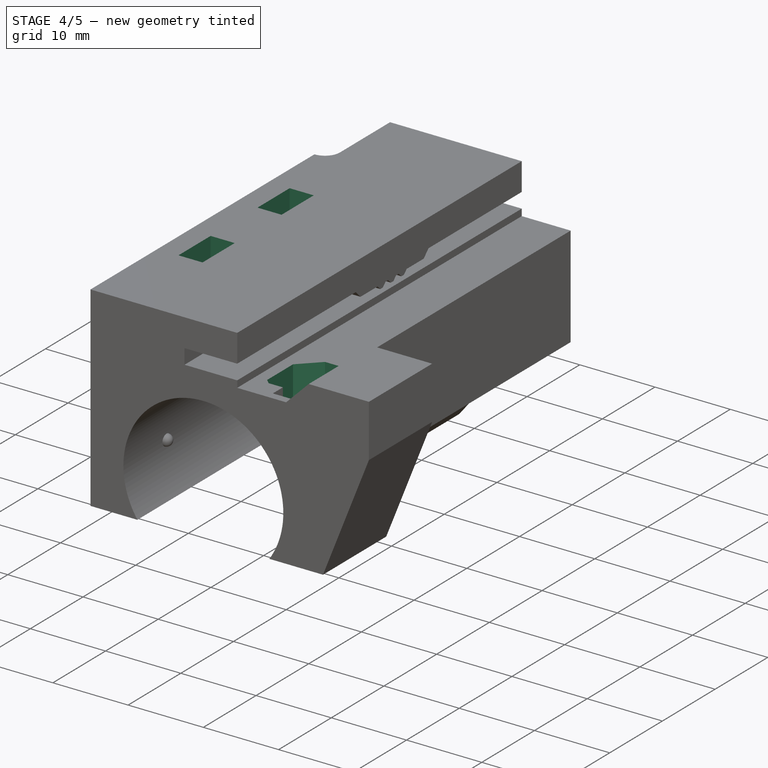
[diagram: stage 4 of 5 — iso view after this stage's code; geometry added in this stage tinted green]
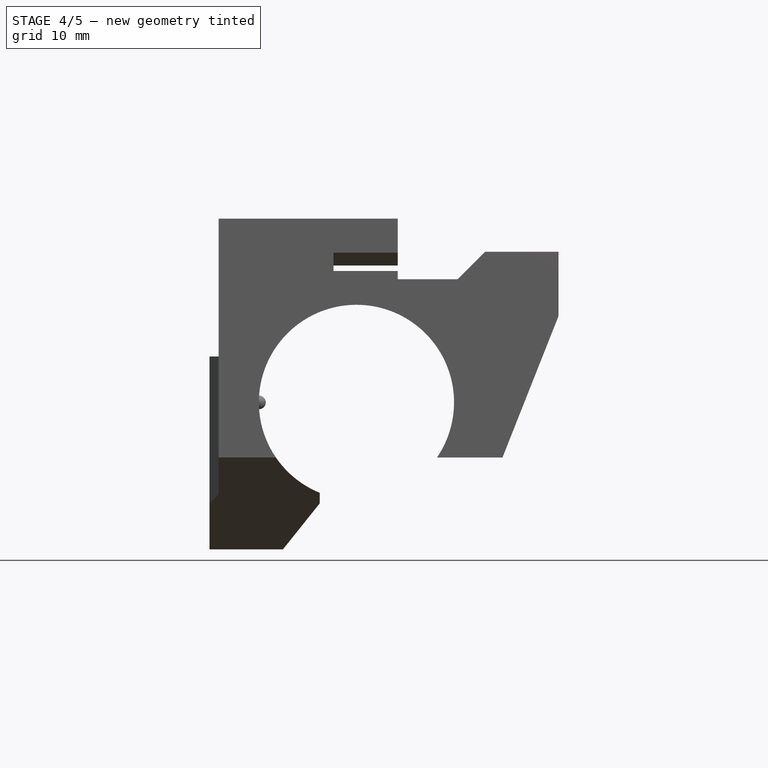
[diagram: stage 4 of 5 — front view after this stage's code; geometry added in this stage tinted green]
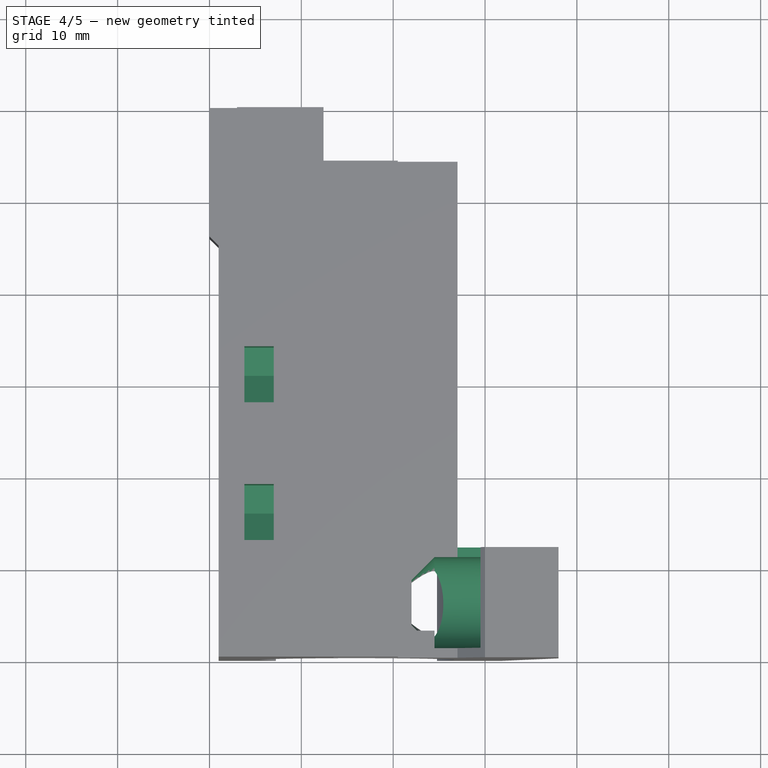
[diagram: stage 4 of 5 — top view after this stage's code; geometry added in this stage tinted green]
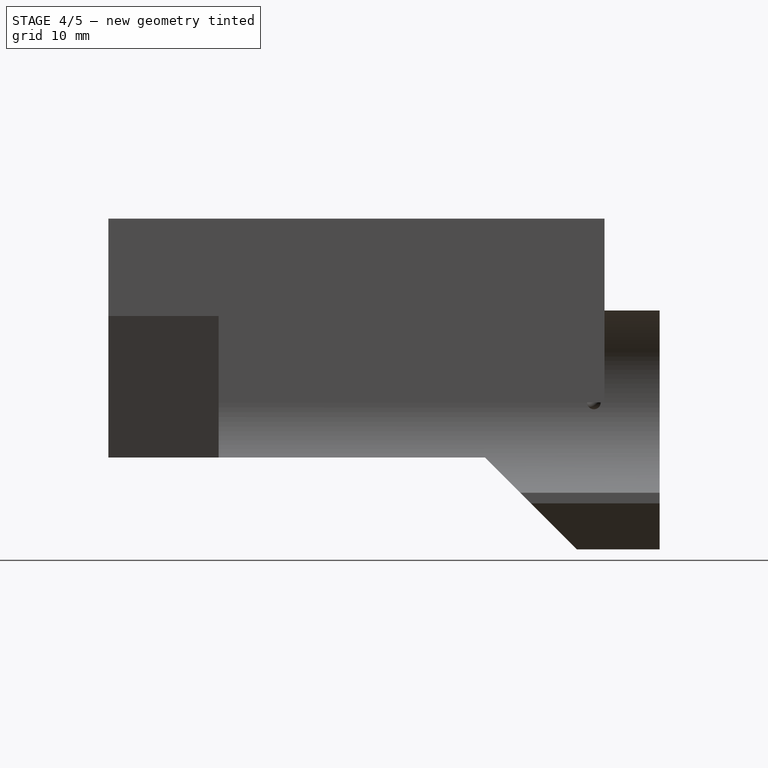
[diagram: stage 4 of 5 — right view after this stage's code; geometry added in this stage tinted green]
FEATURE [Sketcher::SketchObject] Sketch006
  MapMode = 5
  Support = -> [XY_Plane]
  expr: Constraints[11] = sheet1.proxy_lower_cut_dx
  expr: Constraints[10] = sheet1.proxy_lower_cut_dy
  expr: Constraints[8] = sheet1.max_y
  sketch-geometry (4):
    g0: LineSegment StartX=0 StartY=60 StartZ=0 EndX=7 EndY=60 EndZ=0
    g1: LineSegment StartX=7 StartY=60 StartZ=0 EndX=7 EndY=51.8 EndZ=0
    g2: LineSegment StartX=7 StartY=51.8 StartZ=0 EndX=0 EndY=51.8 EndZ=0
    g3: LineSegment StartX=0 StartY=51.8 StartZ=0 EndX=0 EndY=60 EndZ=0
  constraints (12):
    c: Coincident(g0,g1)
    c: Coincident(g1,g2)
    c: Coincident(g2,g3)
    c: Coincident(g3,g0)
    c: Horizontal(g0)
    c: Horizontal(g2)
    c: Vertical(g1)
    c: Vertical(g3)
    c: DistanceY(g-1,g0) = 60
    c: PointOnObject(g2,g-2)
    c: Distance(g3) = 8.2
    c: Distance(g0) = 7
FEATURE [PartDesign::Pocket] Pocket005
  BaseFeature = -> Pocket004
  Length = 4
  Length2 = 100
  Placement = pos=(0,0,0) rot=(1,0,0;1.5708rad)
  Profile = -> Sketch006
  Reversed = true
  Type = 0
  expr: Length = sheet1.proxy_lower_cut_dz
FEATURE [Sketcher::SketchObject] Sketch007
  AttachmentOffset = pos=(0,0,29.5) rot=(0,0,1;0rad)
  MapMode = 5
  Placement = pos=(29.5,-3e-12,3e-12) rot=(0.57735,0.57735,0.57735;2.0944rad)
  Support = -> [YZ_Plane]
  expr: Constraints[16] = sheet1.xrib_groove_base_z
  expr: Constraints[15] = sheet1.xrib_bearing_top_y
  expr: Constraints[6] = sheet1.xrib_bearing_cut_dia / 2
  expr: Constraints[7] = sheet1.runner_bearing_z
  expr: Constraints[8] = sheet1.runner_bearing_y
  expr: Constraints[9] = sheet1.max_z
  expr: AttachmentOffset.Base.z = sheet1.xrib_bearing_cut_ix + sheet1.xrib_bearing_cut_dx
  sketch-geometry (6):
    g0: ArcOfCircle CenterX=6 CenterY=25.8 CenterZ=0 NormalX=0 NormalY=0 NormalZ=1 AngleXU=0 Radius=4.95 StartAngle=3.14159 EndAngle=6.28319
    g1: LineSegment StartX=1.05 StartY=25.8 StartZ=0 EndX=1.05 EndY=36 EndZ=0
    g2: LineSegment StartX=1.05 StartY=36 StartZ=0 EndX=12 EndY=36 EndZ=0
    g3: LineSegment StartX=10.95 StartY=29.4 StartZ=0 EndX=10.95 EndY=25.8 EndZ=0
    g4: LineSegment StartX=10.95 StartY=29.4 StartZ=0 EndX=12 EndY=29.4 EndZ=0
    g5: LineSegment StartX=12 StartY=29.4 StartZ=0 EndX=12 EndY=36 EndZ=0
  constraints (17):
    c: Coincident(g1,g2)
    c: Tangent(g0,g1) = 1.5708
    c: Tangent(g0,g3) = 1.5708
    c: Vertical(g1)
    c: Vertical(g3)
    c: Horizontal(g2)
    c: Radius(g0) = 4.95
    c: DistanceY(g-1,g0) = 25.8
    c: DistanceX(g-2,g0) = 6
    c: DistanceY(g-1,g1) = 36
    c: Coincident(g4,g5)
    c: Coincident(g2,g5)
    c: Coincident(g3,g4)
    c: Horizontal(g4)
    c: Vertical(g5)
    c: DistanceX(g-2,g2) = 12
    c: DistanceY(g-1,g4) = 29.4
FEATURE [Sketcher::SketchObject] Sketch008
  AttachmentOffset = pos=(0,0,24.5) rot=(0,0,1;0rad)
  MapMode = 5
  Placement = pos=(24.5,-3e-12,3e-12) rot=(0.57735,0.57735,0.57735;2.0944rad)
  Support = -> [YZ_Plane]
  expr: Constraints[16] = sheet1.xrib_groove_base_z
  expr: Constraints[15] = sheet1.xrib_bearing_top_y
  expr: Constraints[6] = sheet1.xrib_bearing_cut_dia / 2
  expr: Constraints[7] = sheet1.runner_bearing_z
  expr: Constraints[8] = sheet1.runner_bearing_y
  expr: Constraints[9] = sheet1.max_z
  expr: AttachmentOffset.Base.z = sheet1.xrib_bearing_cut_ix + sheet1.xrib_bearing_cut_chamfer_dx
  sketch-geometry (6):
    g0: ArcOfCircle CenterX=6 CenterY=25.8 CenterZ=0 NormalX=0 NormalY=0 NormalZ=1 AngleXU=0 Radius=4.95 StartAngle=3.14159 EndAngle=6.28319
    g1: LineSegment StartX=1.05 StartY=25.8 StartZ=0 EndX=1.05 EndY=36 EndZ=0
    g2: LineSegment StartX=1.05 StartY=36 StartZ=0 EndX=12 EndY=36 EndZ=0
    g3: LineSegment StartX=10.95 StartY=29.4 StartZ=0 EndX=10.95 EndY=25.8 EndZ=0
    g4: LineSegment StartX=10.95 StartY=29.4 StartZ=0 EndX=12 EndY=29.4 EndZ=0
    g5: LineSegment StartX=12 StartY=29.4 StartZ=0 EndX=12 EndY=36 EndZ=0
  constraints (17):
    c: Coincident(g1,g2)
    c: Tangent(g0,g1) = 1.5708
    c: Tangent(g0,g3) = 1.5708
    c: Vertical(g1)
    c: Vertical(g3)
    c: Horizontal(g2)
    c: Radius(g0) = 4.95
    c: DistanceY(g-1,g0) = 25.8
    c: DistanceX(g-2,g0) = 6
    c: DistanceY(g-1,g1) = 36
    c: Coincident(g4,g5)
    c: Coincident(g3,g4)
    c: Coincident(g2,g5)
    c: Horizontal(g4)
    c: Vertical(g5)
    c: DistanceX(g-2,g2) = 12
    c: DistanceY(g-1,g4) = 29.4
FEATURE [Sketcher::SketchObject] Sketch009
  AttachmentOffset = pos=(0,0,22) rot=(0,0,1;0rad)
  MapMode = 5
  Placement = pos=(22,-2e-12,2e-12) rot=(0.57735,0.57735,0.57735;2.0944rad)
  Support = -> [YZ_Plane]
  expr: Constraints[16] = sheet1.xrib_bearing_top_y
  expr: Constraints[6] = sheet1.xrib_bearing_cut_dia / 2 - 2.5
  expr: Constraints[7] = sheet1.runner_bearing_z
  expr: Constraints[8] = sheet1.runner_bearing_y
  expr: Constraints[9] = sheet1.max_z
  expr: AttachmentOffset.Base.z = sheet1.xrib_bearing_cut_ix
  sketch-geometry (6):
    g0: ArcOfCircle CenterX=6 CenterY=25.8 CenterZ=0 NormalX=0 NormalY=0 NormalZ=1 AngleXU=0 Radius=2.45 StartAngle=3.14159 EndAngle=6.28319
    g1: LineSegment StartX=3.55 StartY=25.8 StartZ=0 EndX=3.55 EndY=36 EndZ=0
    g2: LineSegment StartX=3.55 StartY=36 StartZ=0 EndX=12 EndY=36 EndZ=0
    g3: LineSegment StartX=8.45 StartY=32.73 StartZ=0 EndX=8.45 EndY=25.8 EndZ=0
    g4: LineSegment StartX=8.45 StartY=32.73 StartZ=0 EndX=12 EndY=32.73 EndZ=0
    g5: LineSegment StartX=12 StartY=32.73 StartZ=0 EndX=12 EndY=36 EndZ=0
  constraints (17):
    c: Coincident(g1,g2)
    c: Tangent(g0,g1) = 1.5708
    c: Tangent(g0,g3) = 1.5708
    c: Vertical(g1)
    c: Vertical(g3)
    c: Horizontal(g2)
    c: Radius(g0) = 2.45
    c: DistanceY(g-1,g0) = 25.8
    c: DistanceX(g-2,g0) = 6
    c: DistanceY(g-1,g1) = 36
    c: Coincident(g4,g5)
    c: Horizontal(g4)
    c: Vertical(g5)
    c: Coincident(g3,g4)
    c: DistanceY(g-1,g4) = 32.73
    c: Coincident(g2,g5)
    c: DistanceX(g-2,g2) = 12
FEATURE [PartDesign::SubtractiveLoft] SubtractiveLoft  label="XRib Bearing Pocket"
  BaseFeature = -> Pocket005
  Closed = false
  Placement = pos=(0,0,0) rot=(1,0,0;1.5708rad)
  Profile = -> Sketch009
  Ruled = true
  Sections = -> [Sketch008,Sketch007]
FEATURE [Sketcher::SketchObject] Sketch010
  AttachmentOffset = pos=(0,0,3.8) rot=(0,0,1;0rad)
  MapMode = 5
  Placement = pos=(3.8,0,0) rot=(0.57735,0.57735,0.57735;2.0944rad)
  Support = -> [YZ_Plane]
  expr: Constraints[57] = sheet1.nozzle_bolt2_y
  expr: Constraints[56] = sheet1.nozzle_bolt1_y
  expr: Constraints[55] = sheet1.nozzle_bolt2_z
  expr: Constraints[53] = sheet1.nut_traps_dy
  expr: Constraints[52] = sheet1.max_z
  expr: Constraints[54] = sheet1.nozzle_bolt1_z
  expr: AttachmentOffset.Base.z = sheet1.nut_traps_ix
  sketch-geometry (20):
    g0: LineSegment [constr] StartX=15.75 StartY=32.5218 StartZ=0 EndX=12.7 EndY=30.7609 EndZ=0
    g1: LineSegment StartX=12.7 StartY=30.7609 StartZ=0 EndX=12.7 EndY=27.2391 EndZ=0
    g2: LineSegment StartX=12.7 StartY=27.2391 StartZ=0 EndX=15.75 EndY=25.4782 EndZ=0
    g3: LineSegment StartX=15.75 StartY=25.4782 StartZ=0 EndX=18.8 EndY=27.2391 EndZ=0
    g4: LineSegment StartX=18.8 StartY=27.2391 StartZ=0 EndX=18.8 EndY=30.7609 EndZ=0
    g5: LineSegment [constr] StartX=18.8 StartY=30.7609 StartZ=0 EndX=15.75 EndY=32.5218 EndZ=0
    g6: Circle [constr] CenterX=15.75 CenterY=29 CenterZ=0 NormalX=0 NormalY=0 NormalZ=1 AngleXU=0 Radius=3.52184
    g7: LineSegment [constr] StartX=30.75 StartY=32.5218 StartZ=0 EndX=27.7 EndY=30.7609 EndZ=0
    g8: LineSegment StartX=27.7 StartY=30.7609 StartZ=0 EndX=27.7 EndY=27.2391 EndZ=0
    g9: LineSegment StartX=27.7 StartY=27.2391 StartZ=0 EndX=30.75 EndY=25.4782 EndZ=0
    g10: LineSegment StartX=30.75 StartY=25.4782 StartZ=0 EndX=33.8 EndY=27.2391 EndZ=0
    g11: LineSegment StartX=33.8 StartY=27.2391 StartZ=0 EndX=33.8 EndY=30.7609 EndZ=0
    g12: LineSegment [constr] StartX=33.8 StartY=30.7609 StartZ=0 EndX=30.75 EndY=32.5218 EndZ=0
    g13: Circle [constr] CenterX=30.75 CenterY=29 CenterZ=0 NormalX=0 NormalY=0 NormalZ=1 AngleXU=0 Radius=3.52184
    g14: LineSegment StartX=12.7 StartY=30.7609 StartZ=0 EndX=12.7 EndY=36 EndZ=0
    g15: LineSegment StartX=12.7 StartY=36 StartZ=0 EndX=18.8 EndY=36 EndZ=0
    g16: LineSegment StartX=18.8 StartY=36 StartZ=0 EndX=18.8 EndY=30.7609 EndZ=0
    g17: LineSegment StartX=27.7 StartY=30.7609 StartZ=0 EndX=27.7 EndY=36 EndZ=0
    g18: LineSegment StartX=27.7 StartY=36 StartZ=0 EndX=33.8 EndY=36 EndZ=0
    g19: LineSegment StartX=33.8 StartY=36 StartZ=0 EndX=33.8 EndY=30.7609 EndZ=0
  constraints (50):
    c: Coincident(g0,g1)
    c: Coincident(g1,g2)
    c: Coincident(g2,g3)
    c: Coincident(g3,g4)
    c: Coincident(g4,g5)
    c: Coincident(g5,g0)
    c: Equal(g0, g1-g5) x5
    c: PointOnObject(g0,g6)
    c: PointOnObject(g1,g6)
    c: PointOnObject(g2,g6)
    c: PointOnObject(g3,g6)
    c: PointOnObject(g4,g6)
    c: PointOnObject(g5,g6)
    c: Coincident(g7,g8)
    c: Coincident(g8,g9)
    c: Coincident(g9,g10)
    c: Coincident(g10,g11)
    c: Coincident(g11,g12)
    c: Coincident(g12,g7)
    c: Equal(g7, g8-g12) x5
    c: PointOnObject(g7,g13)
    c: PointOnObject(g8,g13)
    c: PointOnObject(g9,g13)
    c: PointOnObject(g10,g13)
    c: PointOnObject(g11,g13)
    c: PointOnObject(g12,g13)
    c: Coincident(g14,g15)
    c: Coincident(g15,g16)
    c: Coincident(g17,g18)
    c: Coincident(g18,g19)
    c: Coincident(g7,g17)
    c: Coincident(g11,g19)
    c: PointOnObject(g17,g8)
    c: PointOnObject(g18,g11)
    c: Horizontal(g18)
    c: Vertical(g8)
    c: Coincident(g0,g14)
    c: Coincident(g4,g16)
    c: PointOnObject(g14,g1)
    c: PointOnObject(g15,g4)
    c: Vertical(g1)
    c: Equal(g6,g13)
    c: Horizontal(g15)
    c: PointOnObject(g15,g18)
    c: DistanceY(g-1,g14) = 36
    c: Distance(g3,g1) = 6.1
    c: DistanceY(g-1,g6) = 29
    c: DistanceY(g-1,g13) = 29
    c: DistanceX(g-2,g6) = 15.75
    c: DistanceX(g-2,g13) = 30.75
FEATURE [PartDesign::Pocket] Pocket006  label="Nozzle Block Nut Traps"
  BaseFeature = -> SubtractiveLoft
  Length = 3.2
  Length2 = 100
  Placement = pos=(0,0,0) rot=(1,0,0;1.5708rad)
  Profile = -> Sketch010
  Reversed = true
  Type = 0
  expr: Length = sheet1.nut_traps_dx
FEATURE [Sketcher::SketchObject] Sketch011
  MapMode = 5
  Placement = pos=(0,0,0) rot=(0.57735,0.57735,0.57735;2.0944rad)
  Support = -> [YZ_Plane]
  expr: Constraints[5] = sheet1.irsen_bolt1_y
  expr: Constraints[4] = sheet1.irsen_bolt2_y
  expr: Constraints[2] = sheet1.irsen_bolt1_z
  expr: Constraints[3] = sheet1.irsen_bolt2_z
  expr: Constraints[1] = sheet1.m2p5_tap / 2
  sketch-geometry (2):
    g0: Circle CenterX=49.3 CenterY=17 CenterZ=0 NormalX=0 NormalY=0 NormalZ=1 AngleXU=0 Radius=1.25
    g1: Circle CenterX=49.3 CenterY=7 CenterZ=0 NormalX=0 NormalY=0 NormalZ=1 AngleXU=0 Radius=1.25
  constraints (6):
    c: Equal(g0,g1)
    c: Radius(g0) = 1.25
    c: DistanceY(g-1,g1) = 7
    c: DistanceY(g-1,g0) = 17
    c: DistanceX(g-2,g0) = 49.3
    c: DistanceX(g-2,g1) = 49.3
FEATURE [PartDesign::Pocket] Pocket007  label="Proxy Bolt Holes"
  BaseFeature = -> Pocket006
  Length = 4
  Length2 = 100
  Placement = pos=(0,0,0) rot=(1,0,0;1.5708rad)
  Profile = -> Sketch011
  Reversed = true
  Type = 0
  expr: Length = sheet1.proxy_bolt_fx
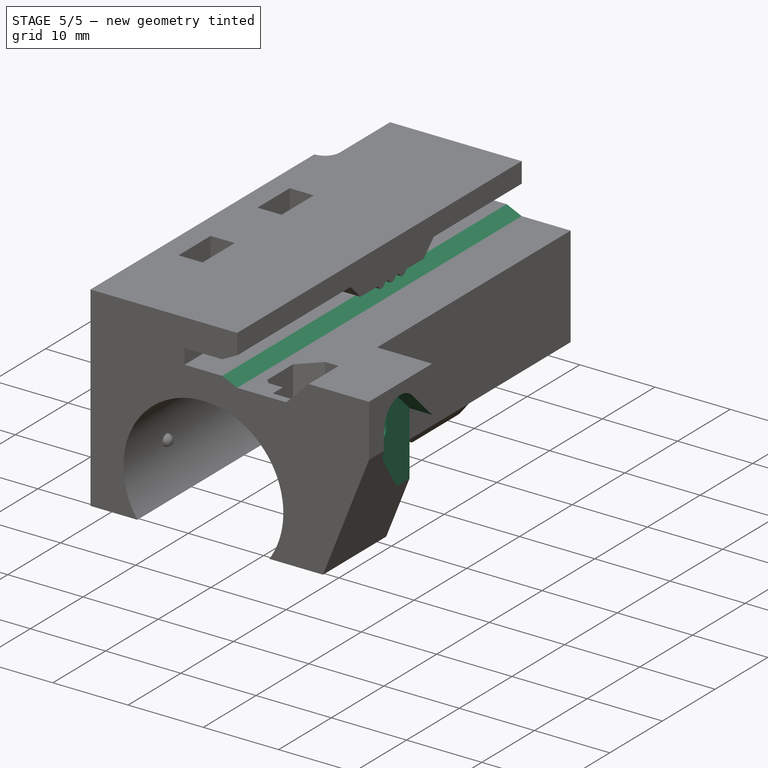
[diagram: stage 5 of 5 — iso view after this stage's code; geometry added in this stage tinted green]
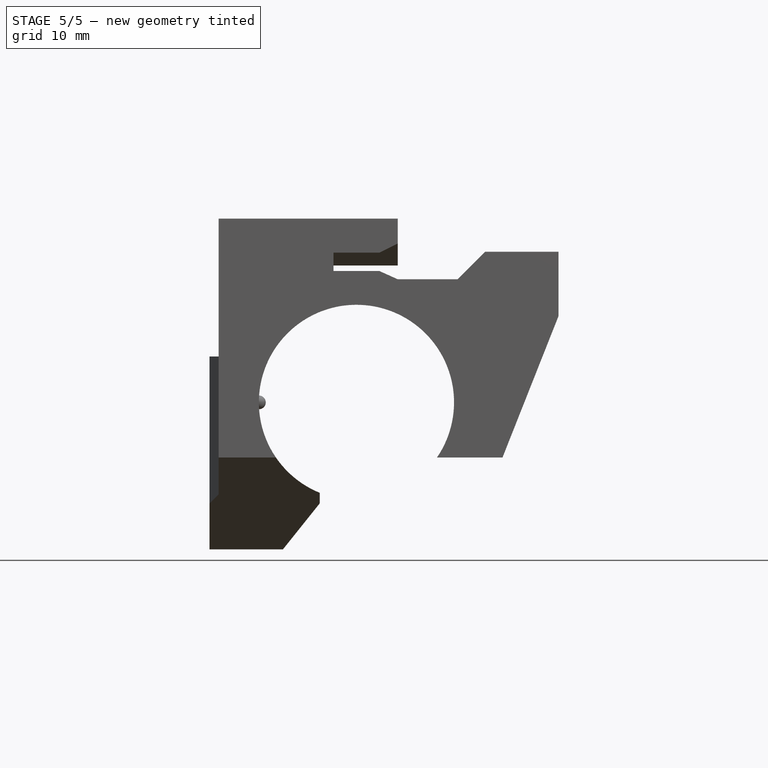
[diagram: stage 5 of 5 — front view after this stage's code; geometry added in this stage tinted green]
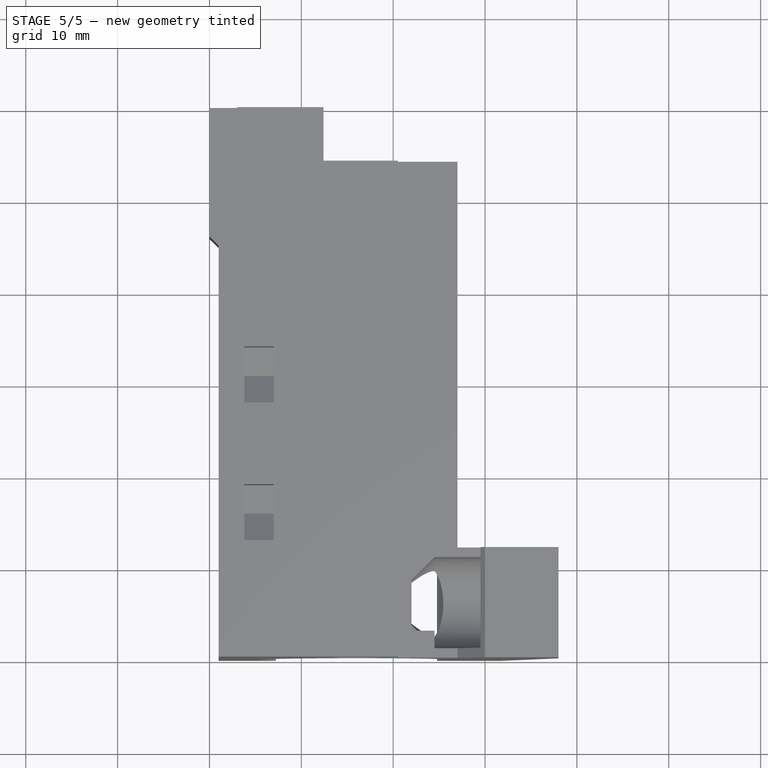
[diagram: stage 5 of 5 — top view after this stage's code; geometry added in this stage tinted green]
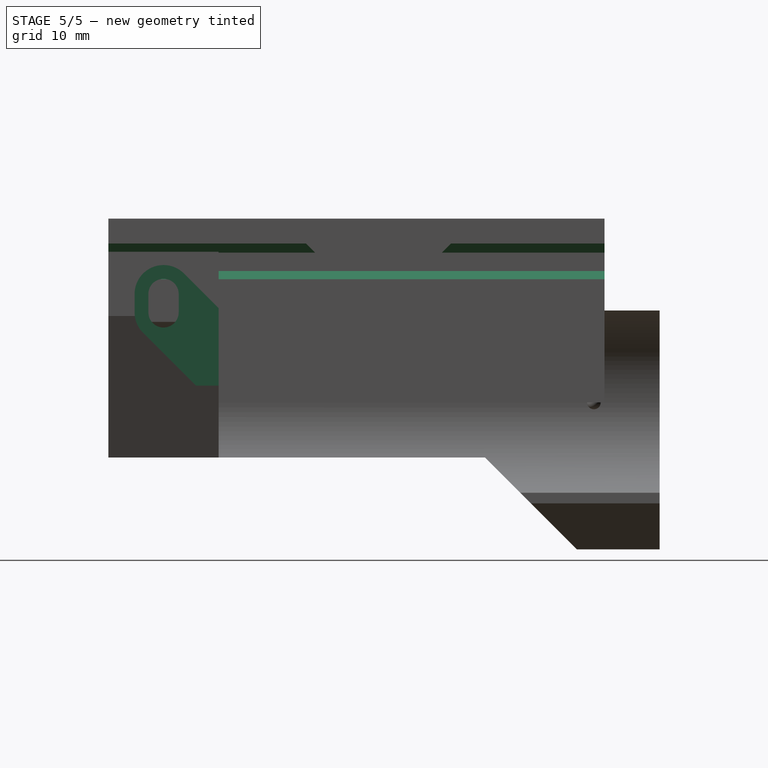
[diagram: stage 5 of 5 — right view after this stage's code; geometry added in this stage tinted green]
FEATURE [Sketcher::SketchObject] Sketch012
  MapMode = 5
  Placement = pos=(0,0,0) rot=(0.57735,0.57735,0.57735;2.0944rad)
  Support = -> [YZ_Plane]
  expr: Constraints[5] = sheet1.nozzle_bolt2_z
  expr: Constraints[4] = sheet1.nozzle_bolt1_z
  expr: Constraints[2] = sheet1.nozzle_bolt1_y
  expr: Constraints[3] = sheet1.nozzle_bolt2_y
  expr: Constraints[1] = sheet1.m3_clearance / 2
  sketch-geometry (2):
    g0: Circle CenterX=15.75 CenterY=29 CenterZ=0 NormalX=0 NormalY=0 NormalZ=1 AngleXU=0 Radius=1.65
    g1: Circle CenterX=30.75 CenterY=29 CenterZ=0 NormalX=0 NormalY=0 NormalZ=1 AngleXU=0 Radius=1.65
  constraints (6):
    c: Equal(g0,g1)
    c: Radius(g0) = 1.65
    c: DistanceX(g-2,g0) = 15.75
    c: DistanceX(g-2,g1) = 30.75
    c: DistanceY(g-1,g0) = 29
    c: DistanceY(g-1,g1) = 29
FEATURE [PartDesign::Pocket] Pocket008  label="Nozzle Block Bolt Holes"
  BaseFeature = -> Pocket007
  Length = 11
  Length2 = 100
  Placement = pos=(0,0,0) rot=(1,0,0;1.5708rad)
  Profile = -> Sketch012
  Reversed = true
  Type = 0
  expr: Length = sheet1.nozzle_bolt_fx
FEATURE [Sketcher::SketchObject] Sketch013
  AttachmentOffset = pos=(0,0,38) rot=(0,0,1;0rad)
  MapMode = 5
  Placement = pos=(38,-4e-12,4e-12) rot=(0.57735,0.57735,0.57735;2.0944rad)
  Support = -> [YZ_Plane]
  expr: AttachmentOffset.Base.z = sheet1.max_x
  expr: Constraints[15] = sheet1.xrib_bearing_top_y
  expr: Constraints[14] = sheet1.runner_bearing_y
  expr: Constraints[13] = sheet1.runner_bearing_z
  expr: Constraints[12] = sheet1.runner_bearing_dz
  expr: Constraints[10] = sheet1.m3_counter_bore / 2
  sketch-geometry (6):
    g0: ArcOfCircle CenterX=6 CenterY=27.8 CenterZ=0 NormalX=0 NormalY=0 NormalZ=1 AngleXU=0 Radius=3.15 StartAngle=0.785398 EndAngle=3.14159
    g1: LineSegment StartX=2.85 StartY=27.8 StartZ=0 EndX=2.85 EndY=25.8 EndZ=0
    g2: ArcOfCircle CenterX=6 CenterY=25.8 CenterZ=0 NormalX=0 NormalY=0 NormalZ=1 AngleXU=0 Radius=3.15 StartAngle=3.14159 EndAngle=3.92699
    g3: LineSegment StartX=8.22739 StartY=30.0274 StartZ=0 EndX=12 EndY=26.2548 EndZ=0
    g4: LineSegment StartX=12 StartY=26.2548 StartZ=0 EndX=12 EndY=15.3452 EndZ=0
    g5: LineSegment StartX=12 StartY=15.3452 StartZ=0 EndX=3.77261 EndY=23.5726 EndZ=0
  constraints (16):
    c: Coincident(g3,g4)
    c: Coincident(g4,g5)
    c: Equal(g2,g0)
    c: Parallel(g5,g3)
    c: Vertical(g1)
    c: Vertical(g4)
    c: Tangent(g1,g0) = -1.5708
    c: Tangent(g0,g3) = 1.5708
    c: Tangent(g1,g2) = -1.5708
    c: Tangent(g2,g5) = 1.5708
    c: Radius(g0) = 3.15
    c: Angle(g3,g4) = 2.35619
    c: Distance(g1) = 2
    c: DistanceY(g-1,g2) = 25.8
    c: DistanceX(g-2,g2) = 6
    c: DistanceX(g-2,g3) = 12
FEATURE [PartDesign::Pocket] Pocket009  label="XRib Bearing Bolt Counterbore"
  BaseFeature = -> Pocket008
  Length = 3
  Length2 = 100
  Placement = pos=(0,0,0) rot=(1,0,0;1.5708rad)
  Profile = -> Sketch013
  Type = 0
  expr: Length = sheet1.xrib_bearing_counterbore_depth
FEATURE [Sketcher::SketchObject] Sketch014
  AttachmentOffset = pos=(0,0,38) rot=(0,0,1;0rad)
  MapMode = 5
  Placement = pos=(38,-4e-12,4e-12) rot=(0.57735,0.57735,0.57735;2.0944rad)
  Support = -> [YZ_Plane]
  expr: AttachmentOffset.Base.z = sheet1.max_x
  expr: Constraints[9] = sheet1.runner_bearing_y
  expr: Constraints[8] = sheet1.runner_bearing_z
  expr: Constraints[7] = sheet1.runner_bearing_dz
  expr: Constraints[6] = sheet1.m3_clearance / 2
  sketch-geometry (4):
    g0: ArcOfCircle CenterX=6 CenterY=27.8 CenterZ=0 NormalX=0 NormalY=0 NormalZ=1 AngleXU=0 Radius=1.65 StartAngle=0 EndAngle=3.14159
    g1: ArcOfCircle CenterX=6 CenterY=25.8 CenterZ=0 NormalX=0 NormalY=0 NormalZ=1 AngleXU=0 Radius=1.65 StartAngle=3.14159 EndAngle=6.28319
    g2: LineSegment StartX=4.35 StartY=27.8 StartZ=0 EndX=4.35 EndY=25.8 EndZ=0
    g3: LineSegment StartX=7.65 StartY=27.8 StartZ=0 EndX=7.65 EndY=25.8 EndZ=0
  constraints (10):
    c: Tangent(g0,g3) = 1.5708
    c: Tangent(g0,g2) = -1.5708
    c: Tangent(g2,g1) = -1.5708
    c: Tangent(g3,g1) = 1.5708
    c: Vertical(g2)
    c: Equal(g0,g1)
    c: Radius(g0) = 1.65
    c: Distance(g3) = 2
    c: DistanceY(g-1,g1) = 25.8
    c: DistanceX(g-2,g1) = 6
FEATURE [PartDesign::Pocket] Pocket010  label="XRib Runner Bearing Bolt Hole"
  BaseFeature = -> Pocket009
  Length = 11
  Length2 = 100
  Placement = pos=(0,0,0) rot=(1,0,0;1.5708rad)
  Profile = -> Sketch014
  Type = 0
  expr: Length = sheet1.max_x - sheet1.xrib_bearing_sup_base_x
FEATURE [Sketcher::SketchObject] Sketch015
  MapMode = 5
  Placement = pos=(0,0,0) rot=(1,0,0;1.5708rad)
  Support = -> [XZ_Plane]
  expr: Constraints[17] = sheet1.belt_top_z
  expr: Constraints[16] = sheet1.belt_base_z
  expr: Constraints[5] = sheet1.belt_top_x
  expr: Constraints[6] = sheet1.xrib_groove_base_z
  sketch-geometry (6):
    g0: LineSegment StartX=20.5 StartY=33.3 StartZ=0 EndX=17.5 EndY=31.8 EndZ=0
    g1: LineSegment StartX=17.5 StartY=30.75 StartZ=0 EndX=20.5 EndY=29.4 EndZ=0
    g2: LineSegment StartX=20.5 StartY=29.4 StartZ=0 EndX=20.5 EndY=33.3 EndZ=0
    g3: LineSegment [constr] StartX=17.5 StartY=31.275 StartZ=0 EndX=20.5 EndY=31.275 EndZ=0
    g4: LineSegment [constr] StartX=18.5 StartY=32.3 StartZ=0 EndX=18.5 EndY=30.3 EndZ=0
    g5: LineSegment StartX=17.5 StartY=31.8 StartZ=0 EndX=17.5 EndY=30.75 EndZ=0
  constraints (19):
    c: Coincident(g1,g2)
    c: Coincident(g2,g0)
    c: Vertical(g2)
    c: PointOnObject(g3,g2)
    c: Symmetric(g1,g0,g3)
    c: DistanceX(g-2,g0) = 20.5
    c: DistanceY(g-1,g1) = 29.4
    c: Horizontal(g3)
    c: PointOnObject(g4,g0)
    c: PointOnObject(g4,g1)
    c: Vertical(g4)
    c: Coincident(g5,g0)
    c: Coincident(g5,g1)
    c: PointOnObject(g3,g5)
    c: DistanceX(g4,g0) = 2
    c: DistanceY(g4,g0) = 1
    c: DistanceY(g-1,g4) = 30.3
    c: DistanceY(g-1,g4) = 32.3
    c: DistanceX(g0,g4) = 1
FEATURE [PartDesign::Pocket] Pocket011  label="Belt Input Chamfer"
  BaseFeature = -> Pocket010
  Length = 5
  Length2 = 100
  Placement = pos=(0,0,0) rot=(1,0,0;1.5708rad)
  Profile = -> Sketch015
  Type = 1
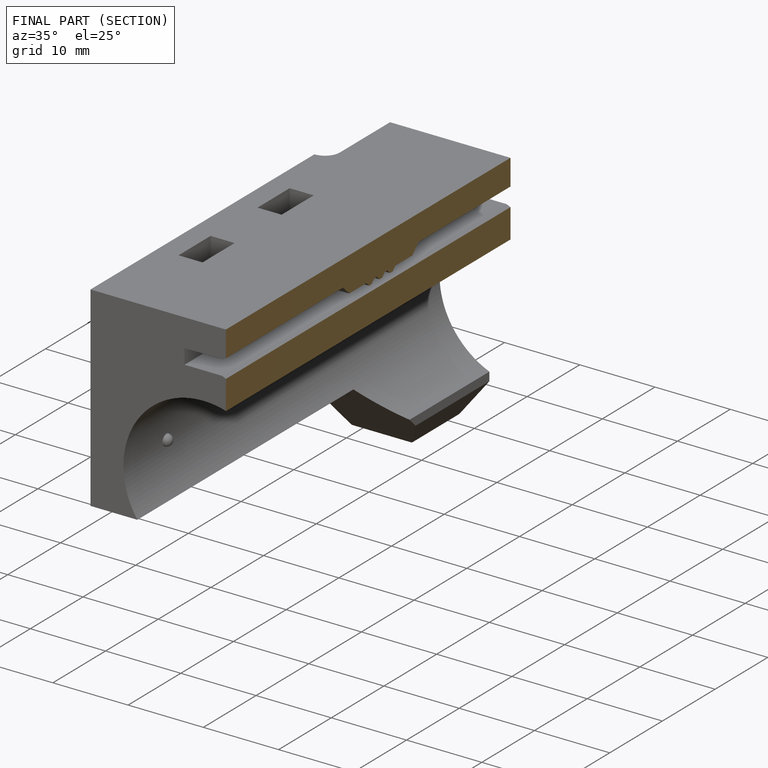
[diagram: finished part — half-section view (interior)]
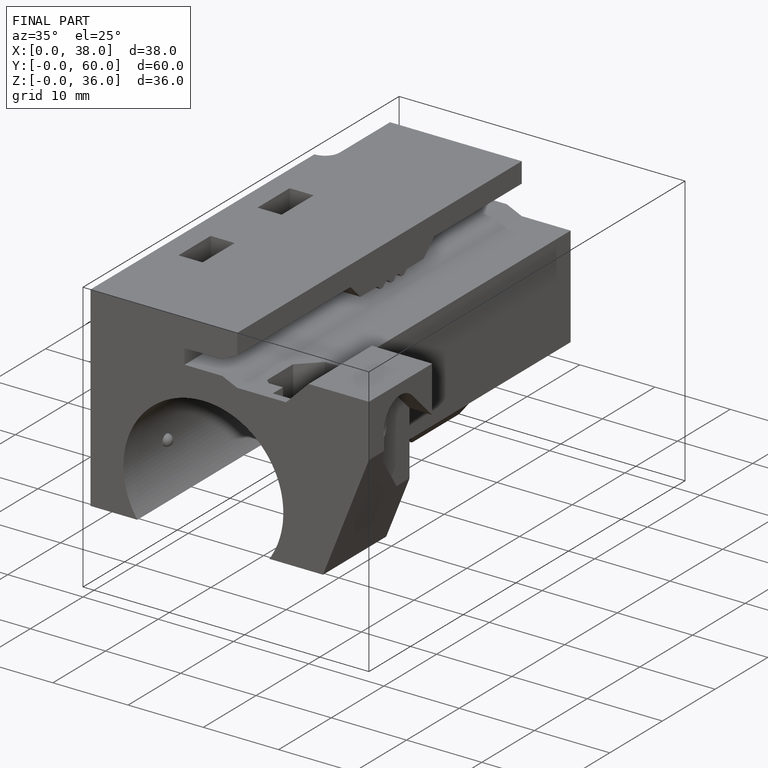
[diagram: finished part — iso view with bounding-box wireframe]
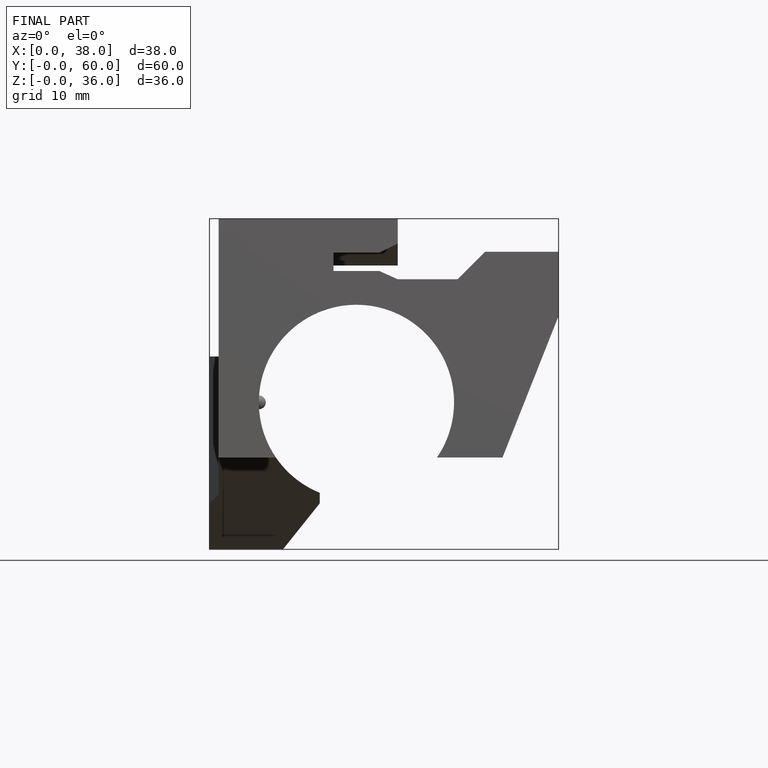
[diagram: finished part — front view with bounding-box wireframe]
